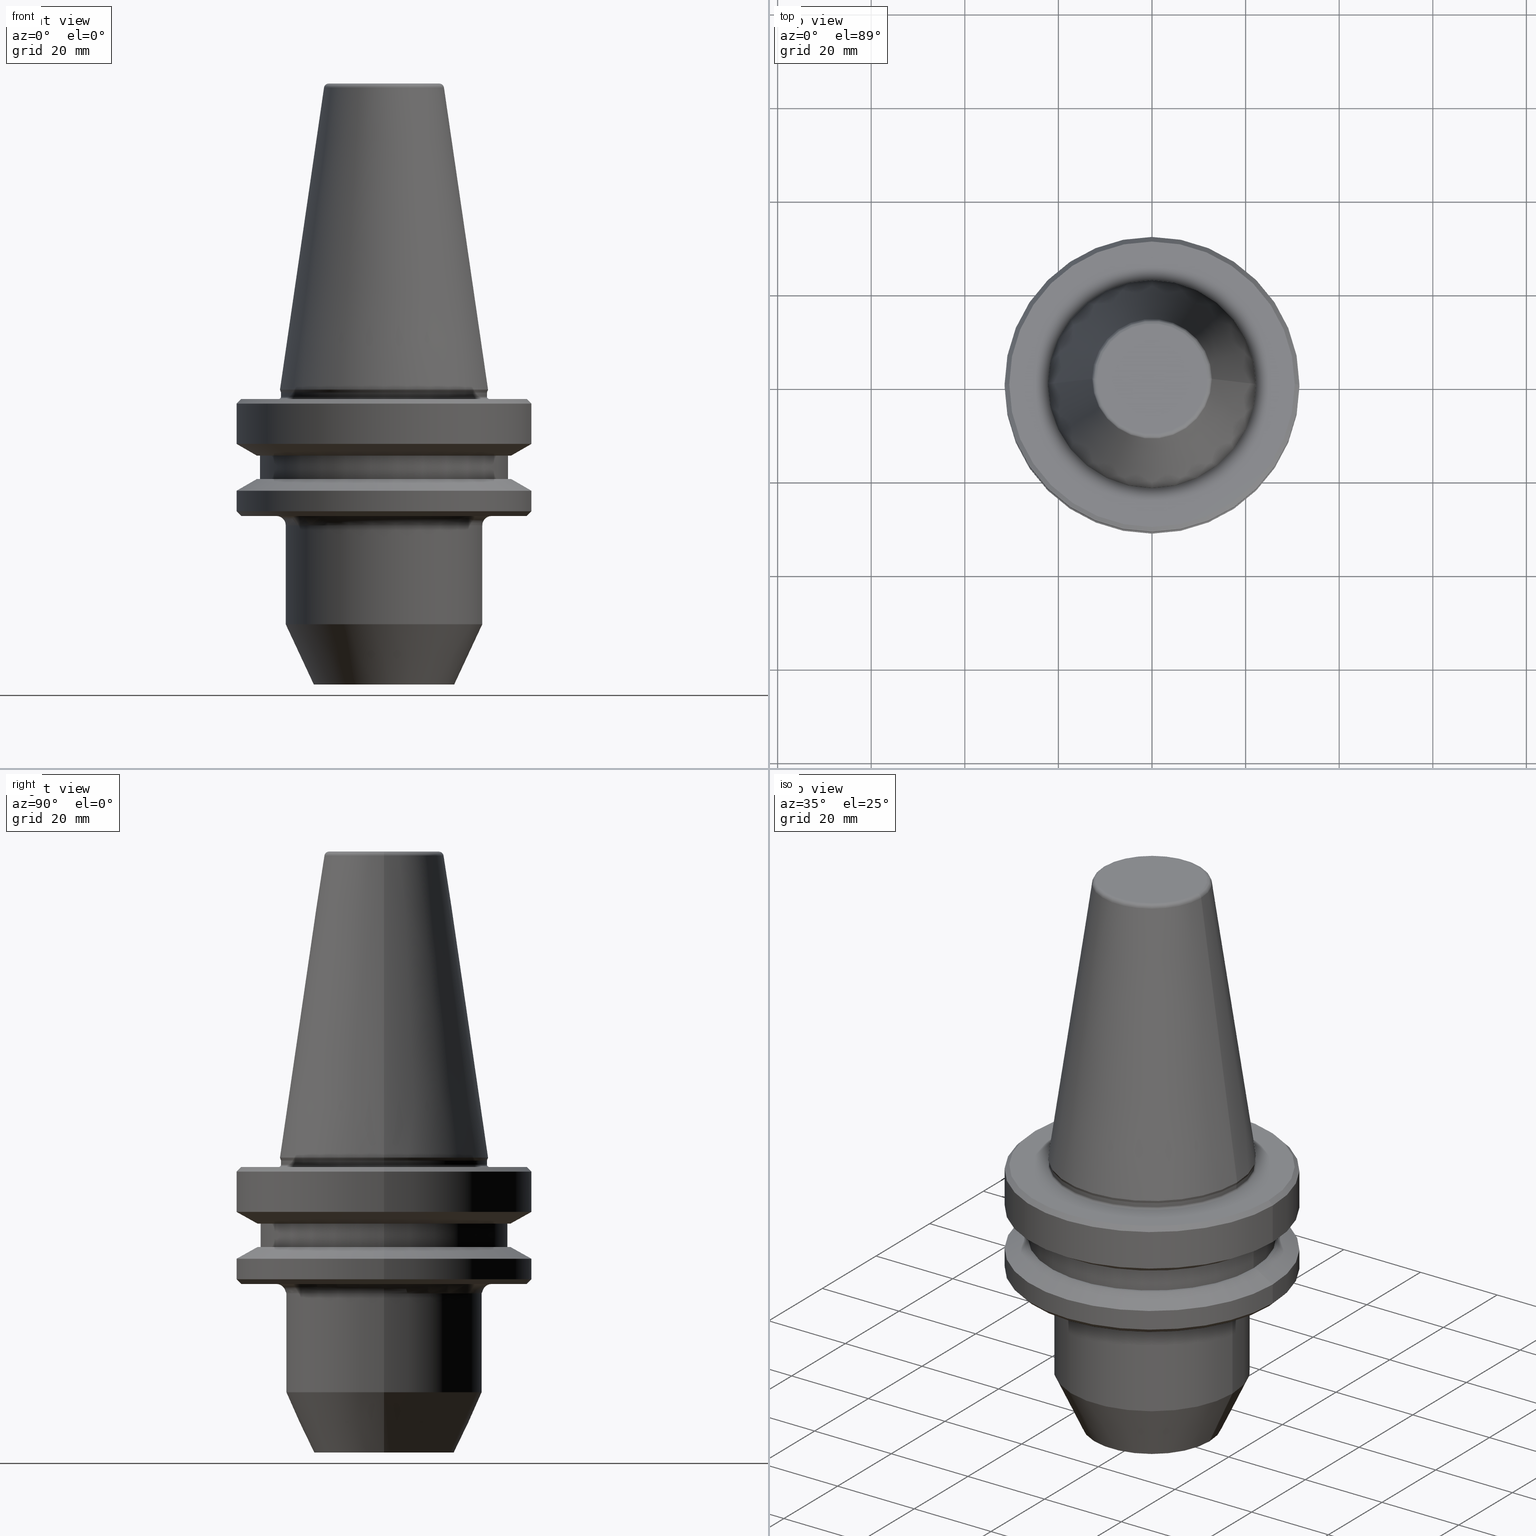
[diagram: canonical four-view strip — front | top / right | iso, engineering-drawing reading convention]
A machine part, canonical four-view strip (front | top / right | iso — engineering-drawing reading convention). The complete STEP part file that produces these views, byte-faithful:
ISO-10303-21;
HEADER;
FILE_DESCRIPTION (( 'STEP AP203' ),
    '1' );
FILE_NAME ('BT40 WE12 063 AD-6.3G15000 SL.STEP',
    '2019-05-22T08:18:51',
    ( '' ),
    ( '' ),
    'SwSTEP 2.0',
    'SolidWorks 2014',
    '' );
FILE_SCHEMA (( 'CONFIG_CONTROL_DESIGN' ));
ENDSEC;

DATA;
#1 = CARTESIAN_POINT ( 'NONE',  ( -14.99999999999845800, 2.204364238465033900E-015, -63.00000000012006800 ) ) ;
#2 = ORIENTED_EDGE ( 'NONE', *, *, #79, .T. ) ;
#3 = DIRECTION ( 'NONE',  ( 1.000000000000000000, 0.0000000000000000000, 0.0000000000000000000 ) ) ;
#4 = AXIS2_PLACEMENT_3D ( 'NONE', #421, #53, #819 ) ;
#5 = DIRECTION ( 'NONE',  ( -0.0000000000000000000, -0.0000000000000000000, 1.000000000000000000 ) ) ;
#6 = DIRECTION ( 'NONE',  ( 1.000000000000000000, 0.0000000000000000000, 0.0000000000000000000 ) ) ;
#7 = CARTESIAN_POINT ( 'NONE',  ( 0.0000000000000000000, 0.0000000000000000000, 0.0000000000000000000 ) ) ;
#8 = ADVANCED_FACE ( 'NONE', ( #950 ), #482, .T. ) ;
#9 = DIRECTION ( 'NONE',  ( 1.000000000000000000, 0.0000000000000000000, 0.0000000000000000000 ) ) ;
#10 = ORIENTED_EDGE ( 'NONE', *, *, #496, .F. ) ;
#11 = ORIENTED_EDGE ( 'NONE', *, *, #674, .T. ) ;
#12 = ORIENTED_EDGE ( 'NONE', *, *, #782, .T. ) ;
#13 = ORIENTED_EDGE ( 'NONE', *, *, #858, .T. ) ;
#14 = ORIENTED_EDGE ( 'NONE', *, *, #693, .F. ) ;
#15 = CARTESIAN_POINT ( 'NONE',  ( 12.81220206925735800, 0.0000000000000000000, 64.54430818888884900 ) ) ;
#16 = CIRCLE ( 'NONE', #963, 20.99999999999824100 ) ;
#17 = CARTESIAN_POINT ( 'NONE',  ( 14.99999999999845800, 0.0000000000000000000, -63.00000000012006800 ) ) ;
#18 = VECTOR ( 'NONE', #284, 1000.000000000000000 ) ;
#19 = DIRECTION ( 'NONE',  ( 0.0000000000000000000, 0.0000000000000000000, -1.000000000000000000 ) ) ;
#20 = ORIENTED_EDGE ( 'NONE', *, *, #666, .F. ) ;
#21 = DIRECTION ( 'NONE',  ( -0.0000000000000000000, -0.0000000000000000000, 1.000000000000000000 ) ) ;
#22 = DIRECTION ( 'NONE',  ( -0.0000000000000000000, -0.0000000000000000000, 1.000000000000000000 ) ) ;
#23 = DATE_AND_TIME ( #230, #453 ) ;
#24 = CARTESIAN_POINT ( 'NONE',  ( 0.0000000000000000000, 0.0000000000000000000, -0.6887132116596972300 ) ) ;
#25 = CARTESIAN_POINT ( 'NONE',  ( -27.16962701892300200, 3.592478546794661500E-015, -14.09999999999966700 ) ) ;
#26 = AXIS2_PLACEMENT_3D ( 'NONE', #143, #334, #139 ) ;
#27 = AXIS2_PLACEMENT_3D ( 'NONE', #567, #449, #665 ) ;
#28 = ADVANCED_FACE ( 'NONE', ( #355 ), #559, .T. ) ;
#29 = ORIENTED_EDGE ( 'NONE', *, *, #68, .T. ) ;
#30 = CIRCLE ( 'NONE', #408, 14.99999999999845800 ) ;
#31 = DIRECTION ( 'NONE',  ( 0.0000000000000000000, 0.0000000000000000000, -1.000000000000000000 ) ) ;
#32 = FACE_OUTER_BOUND ( 'NONE', #168, .T. ) ;
#33 = ORIENTED_EDGE ( 'NONE', *, *, #344, .F. ) ;
#34 = DIRECTION ( 'NONE',  ( -0.0000000000000000000, -0.0000000000000000000, 1.000000000000000000 ) ) ;
#35 = ORIENTED_EDGE ( 'NONE', *, *, #98, .T. ) ;
#36 = ORIENTED_EDGE ( 'NONE', *, *, #730, .T. ) ;
#37 = SECURITY_CLASSIFICATION_LEVEL ( 'unclassified' ) ;
#38 = DIRECTION ( 'NONE',  ( 1.000000000000000000, 0.0000000000000000000, 0.0000000000000000000 ) ) ;
#39 = VERTEX_POINT ( 'NONE', #76 ) ;
#40 = ORIENTED_EDGE ( 'NONE', *, *, #496, .T. ) ;
#41 = CIRCLE ( 'NONE', #286, 22.02412295168563700 ) ;
#42 = DIRECTION ( 'NONE',  ( -0.0000000000000000000, -0.0000000000000000000, 1.000000000000000000 ) ) ;
#43 = EDGE_LOOP ( 'NONE', ( #67, #831 ) ) ;
#44 = LINE ( 'NONE', #367, #18 ) ;
#45 = ADVANCED_FACE ( 'NONE', ( #748 ), #994, .F. ) ;
#46 = DIRECTION ( 'NONE',  ( 1.000000000000000000, 0.0000000000000000000, 0.0000000000000000000 ) ) ;
#47 = AXIS2_PLACEMENT_3D ( 'NONE', #500, #797, #122 ) ;
#48 = PLANE ( 'NONE',  #92 ) ;
#49 = APPROVAL_DATE_TIME ( #259, #918 ) ;
#50 = DIRECTION ( 'NONE',  ( 1.000000000000000000, 0.0000000000000000000, 0.0000000000000000000 ) ) ;
#51 = ORIENTED_EDGE ( 'NONE', *, *, #759, .T. ) ;
#52 = EDGE_LOOP ( 'NONE', ( #36, #623, #340, #383 ) ) ;
#53 = DIRECTION ( 'NONE',  ( -0.0000000000000000000, -0.0000000000000000000, 1.000000000000000000 ) ) ;
#54 = AXIS2_PLACEMENT_3D ( 'NONE', #179, #885, #507 ) ;
#55 = VECTOR ( 'NONE', #147, 1000.000000000000000 ) ;
#56 = LINE ( 'NONE', #193, #890 ) ;
#57 = DIRECTION ( 'NONE',  ( 0.0000000000000000000, 0.0000000000000000000, -1.000000000000000000 ) ) ;
#58 = CARTESIAN_POINT ( 'NONE',  ( 31.50000000000030600, 0.0000000000000000000, -21.60014200642035200 ) ) ;
#59 = DIRECTION ( 'NONE',  ( -0.0000000000000000000, -0.0000000000000000000, 1.000000000000000000 ) ) ;
#60 = AXIS2_PLACEMENT_3D ( 'NONE', #826, #476, #1025 ) ;
#61 = ADVANCED_FACE ( 'NONE', ( #267, #391 ), #310, .F. ) ;
#62 = APPLICATION_CONTEXT ( 'configuration controlled 3d designs of mechanical parts and assemblies' ) ;
#63 = ORIENTED_EDGE ( 'NONE', *, *, #847, .F. ) ;
#64 = AXIS2_PLACEMENT_3D ( 'NONE', #107, #1050, #869 ) ;
#65 = DIRECTION ( 'NONE',  ( 0.0000000000000000000, 0.0000000000000000000, -1.000000000000000000 ) ) ;
#66 = LINE ( 'NONE', #901, #685 ) ;
#67 = ORIENTED_EDGE ( 'NONE', *, *, #621, .T. ) ;
#68 = EDGE_CURVE ( 'NONE', #386, #299, #506, .T. ) ;
#69 = CONICAL_SURFACE ( 'NONE', #983, 22.02412295168563700, 0.3490658503994841800 ) ;
#70 = CARTESIAN_POINT ( 'NONE',  ( 0.0000000000000000000, 0.0000000000000000000, -1.499999999999779300 ) ) ;
#71 = CARTESIAN_POINT ( 'NONE',  ( 0.0000000000000000000, 0.0000000000000000000, -29.00000000010344400 ) ) ;
#72 = ORIENTED_EDGE ( 'NONE', *, *, #611, .T. ) ;
#73 = CARTESIAN_POINT ( 'NONE',  ( -22.22499999999993700, 0.0000000000000000000, 0.0000000000000000000 ) ) ;
#74 = CARTESIAN_POINT ( 'NONE',  ( 30.50000000000008200, 0.0000000000000000000, -27.00000000010344100 ) ) ;
#75 = APPROVAL_PERSON_ORGANIZATION ( #285, #918, #410 ) ;
#76 = CARTESIAN_POINT ( 'NONE',  ( 21.99999999999999300, 0.0000000000000000000, -1.499999999999779300 ) ) ;
#77 = ORIENTED_EDGE ( 'NONE', *, *, #194, .F. ) ;
#78 = DIRECTION ( 'NONE',  ( -0.0000000000000000000, -0.0000000000000000000, 1.000000000000000000 ) ) ;
#79 = EDGE_CURVE ( 'NONE', #429, #241, #313, .T. ) ;
#80 = VECTOR ( 'NONE', #717, 1000.000000000000100 ) ;
#81 = LINE ( 'NONE', #650, #508 ) ;
#82 = DIRECTION ( 'NONE',  ( 0.0000000000000000000, -0.0000000000000000000, 1.000000000000000000 ) ) ;
#83 = EDGE_LOOP ( 'NONE', ( #684, #13, #100, #834 ) ) ;
#84 = DIRECTION ( 'NONE',  ( 1.000000000000000000, 0.0000000000000000000, 0.0000000000000000000 ) ) ;
#85 = AXIS2_PLACEMENT_3D ( 'NONE', #319, #485, #452 ) ;
#86 = APPROVAL_ROLE ( '' ) ;
#87 = ORIENTED_EDGE ( 'NONE', *, *, #966, .T. ) ;
#88 = ORIENTED_EDGE ( 'NONE', *, *, #916, .T. ) ;
#89 = ADVANCED_FACE ( 'NONE', ( #726 ), #164, .T. ) ;
#90 = DIRECTION ( 'NONE',  ( 0.0000000000000000000, 0.0000000000000000000, 1.000000000000000000 ) ) ;
#91 = CIRCLE ( 'NONE', #155, 30.50000000000008200 ) ;
#92 = AXIS2_PLACEMENT_3D ( 'NONE', #605, #82, #440 ) ;
#93 = CYLINDRICAL_SURFACE ( 'NONE', #26, 31.50000000000030600 ) ;
#94 = ADVANCED_FACE ( 'NONE', ( #579 ), #228, .T. ) ;
#95 = APPROVAL_STATUS ( 'not_yet_approved' ) ;
#96 = EDGE_CURVE ( 'NONE', #541, #574, #399, .T. ) ;
#97 = DIRECTION ( 'NONE',  ( 1.000000000000000000, 0.0000000000000000000, 0.0000000000000000000 ) ) ;
#98 = EDGE_CURVE ( 'NONE', #699, #991, #855, .T. ) ;
#99 = ADVANCED_FACE ( 'NONE', ( #669 ), #728, .T. ) ;
#100 = ORIENTED_EDGE ( 'NONE', *, *, #744, .T. ) ;
#101 = AXIS2_PLACEMENT_3D ( 'NONE', #24, #282, #402 ) ;
#102 = CARTESIAN_POINT ( 'NONE',  ( -27.16962701892300200, 3.327319676275150100E-015, -14.09999999999966700 ) ) ;
#103 = FACE_BOUND ( 'NONE', #489, .T. ) ;
#104 = CARTESIAN_POINT ( 'NONE',  ( 0.0000000000000000000, 0.0000000000000000000, 108.5744106306333100 ) ) ;
#105 = EDGE_LOOP ( 'NONE', ( #989, #323 ) ) ;
#106 = CARTESIAN_POINT ( 'NONE',  ( 0.0000000000000000000, 0.0000000000000000000, 108.5744106306333100 ) ) ;
#107 = CARTESIAN_POINT ( 'NONE',  ( 0.0000000000000000000, 0.0000000000000000000, -2.999999999999780600 ) ) ;
#108 = ADVANCED_FACE ( 'NONE', ( #256 ), #706, .T. ) ;
#109 = CARTESIAN_POINT ( 'NONE',  ( 0.0000000000000000000, 0.0000000000000000000, -19.10000000010314400 ) ) ;
#110 = DIRECTION ( 'NONE',  ( -0.0000000000000000000, -0.0000000000000000000, 1.000000000000000000 ) ) ;
#111 = CC_DESIGN_PERSON_AND_ORGANIZATION_ASSIGNMENT ( #502, #512, ( #200 ) ) ;
#112 = VERTEX_POINT ( 'NONE', #625 ) ;
#113 = EDGE_CURVE ( 'NONE', #1010, #552, #943, .T. ) ;
#114 = ORIENTED_EDGE ( 'NONE', *, *, #898, .T. ) ;
#115 = CIRCLE ( 'NONE', #306, 12.81220206925737200 ) ;
#116 = TOROIDAL_SURFACE ( 'NONE', #315, 22.39999999999997700, 0.4000000000000609200 ) ;
#117 = CARTESIAN_POINT ( 'NONE',  ( 22.99999999999824500, 0.0000000000000000000, -27.00000000010344100 ) ) ;
#118 = EDGE_CURVE ( 'NONE', #654, #616, #81, .T. ) ;
#119 = DIRECTION ( 'NONE',  ( -0.0000000000000000000, -0.0000000000000000000, 1.000000000000000000 ) ) ;
#120 = DIRECTION ( 'NONE',  ( -0.0000000000000000000, -0.0000000000000000000, 1.000000000000000000 ) ) ;
#121 = ORIENTED_EDGE ( 'NONE', *, *, #799, .F. ) ;
#122 = DIRECTION ( 'NONE',  ( 1.000000000000000000, 0.0000000000000000000, 0.0000000000000000000 ) ) ;
#123 = MECHANICAL_CONTEXT ( 'NONE', #935, 'mechanical' ) ;
#124 = EDGE_CURVE ( 'NONE', #554, #805, #915, .T. ) ;
#125 = AXIS2_PLACEMENT_3D ( 'NONE', #445, #181, #697 ) ;
#126 = VERTEX_POINT ( 'NONE', #15 ) ;
#127 = DIRECTION ( 'NONE',  ( -1.000000000000000000, 0.0000000000000000000, -0.0000000000000000000 ) ) ;
#128 = EDGE_CURVE ( 'NONE', #574, #466, #56, .T. ) ;
#129 = VERTEX_POINT ( 'NONE', #364 ) ;
#130 = DIRECTION ( 'NONE',  ( -0.0000000000000000000, -0.0000000000000000000, 1.000000000000000000 ) ) ;
#131 = TOROIDAL_SURFACE ( 'NONE', #283, 22.99999999999824500, 2.000000000000001800 ) ;
#132 = ORIENTED_EDGE ( 'NONE', *, *, #407, .F. ) ;
#133 = ORIENTED_EDGE ( 'NONE', *, *, #611, .F. ) ;
#134 = CARTESIAN_POINT ( 'NONE',  ( 0.0000000000000000000, 0.0000000000000000000, -21.60014200642035200 ) ) ;
#135 = CALENDAR_DATE ( 2019, 22, 5 ) ;
#136 = ORIENTED_EDGE ( 'NONE', *, *, #237, .T. ) ;
#137 = VERTEX_POINT ( 'NONE', #683 ) ;
#138 = EDGE_LOOP ( 'NONE', ( #575, #820, #390, #653 ) ) ;
#139 = DIRECTION ( 'NONE',  ( 1.000000000000000000, 0.0000000000000000000, 0.0000000000000000000 ) ) ;
#140 = CYLINDRICAL_SURFACE ( 'NONE', #596, 26.50000000000030200 ) ;
#141 = ADVANCED_FACE ( 'NONE', ( #294 ), #239, .T. ) ;
#142 = VECTOR ( 'NONE', #287, 1000.000000000000000 ) ;
#143 = CARTESIAN_POINT ( 'NONE',  ( 0.0000000000000000000, 0.0000000000000000000, 108.5744106306333100 ) ) ;
#144 = ORIENTED_EDGE ( 'NONE', *, *, #852, .T. ) ;
#145 = EDGE_CURVE ( 'NONE', #39, #112, #459, .T. ) ;
#146 = DIRECTION ( 'NONE',  ( -0.0000000000000000000, -0.0000000000000000000, 1.000000000000000000 ) ) ;
#147 = DIRECTION ( 'NONE',  ( -0.0000000000000000000, -0.0000000000000000000, 1.000000000000000000 ) ) ;
#148 = ORIENTED_EDGE ( 'NONE', *, *, #545, .T. ) ;
#149 = EDGE_LOOP ( 'NONE', ( #121, #380, #758, #853 ) ) ;
#150 = CARTESIAN_POINT ( 'NONE',  ( 0.0000000000000000000, 26.50000000000030200, -14.09999999999966700 ) ) ;
#151 = AXIS2_PLACEMENT_3D ( 'NONE', #708, #902, #1000 ) ;
#152 = CIRCLE ( 'NONE', #461, 22.22499999999993700 ) ;
#153 = EDGE_CURVE ( 'NONE', #441, #603, #672, .T. ) ;
#154 = ORIENTED_EDGE ( 'NONE', *, *, #1006, .F. ) ;
#155 = AXIS2_PLACEMENT_3D ( 'NONE', #455, #119, #277 ) ;
#156 = DIRECTION ( 'NONE',  ( 1.224646799147353200E-016, 1.000000000000000000, 0.0000000000000000000 ) ) ;
#157 = EDGE_CURVE ( 'NONE', #719, #429, #266, .T. ) ;
#158 = DATE_AND_TIME ( #371, #585 ) ;
#159 = VERTEX_POINT ( 'NONE', #548 ) ;
#160 = DIRECTION ( 'NONE',  ( 1.000000000000000000, 0.0000000000000000000, 0.0000000000000000000 ) ) ;
#161 = ORIENTED_EDGE ( 'NONE', *, *, #248, .F. ) ;
#162 = ADVANCED_FACE ( 'NONE', ( #642, #483 ), #474, .F. ) ;
#163 = CARTESIAN_POINT ( 'NONE',  ( -26.50000000000030200, 3.245314017740522800E-015, 108.5744106306333100 ) ) ;
#164 = CONICAL_SURFACE ( 'NONE', #996, 31.50000000000030600, 1.047197551196601900 ) ;
#165 = CIRCLE ( 'NONE', #948, 14.99999999999845800 ) ;
#166 = DIRECTION ( 'NONE',  ( -1.000000000000000000, 1.224646799147355400E-016, 0.0000000000000000000 ) ) ;
#167 = FACE_OUTER_BOUND ( 'NONE', #43, .T. ) ;
#168 = EDGE_LOOP ( 'NONE', ( #644, #335, #209, #20 ) ) ;
#169 = AXIS2_PLACEMENT_3D ( 'NONE', #333, #843, #863 ) ;
#170 = ORIENTED_EDGE ( 'NONE', *, *, #551, .F. ) ;
#171 = DIRECTION ( 'NONE',  ( 1.000000000000000000, 0.0000000000000000000, 0.0000000000000000000 ) ) ;
#172 = CARTESIAN_POINT ( 'NONE',  ( -20.99999999999824100, 2.571758278209226700E-015, -29.00000000010344400 ) ) ;
#173 = CIRCLE ( 'NONE', #778, 26.50000000000030200 ) ;
#174 = DIRECTION ( 'NONE',  ( -0.7071067811865474600, 0.0000000000000000000, -0.7071067811865475700 ) ) ;
#175 = CARTESIAN_POINT ( 'NONE',  ( 0.0000000000000000000, 0.0000000000000000000, -21.60014200642035200 ) ) ;
#176 = AXIS2_PLACEMENT_3D ( 'NONE', #188, #783, #307 ) ;
#177 = CIRCLE ( 'NONE', #911, 22.99999999999824500 ) ;
#178 = DIRECTION ( 'NONE',  ( -0.0000000000000000000, -0.0000000000000000000, 1.000000000000000000 ) ) ;
#179 = CARTESIAN_POINT ( 'NONE',  ( 0.0000000000000000000, 0.0000000000000000000, -0.6887132116596972300 ) ) ;
#180 = DIRECTION ( 'NONE',  ( 1.000000000000000000, 0.0000000000000000000, 0.0000000000000000000 ) ) ;
#181 = DIRECTION ( 'NONE',  ( -0.0000000000000000000, -0.0000000000000000000, 1.000000000000000000 ) ) ;
#182 = CARTESIAN_POINT ( 'NONE',  ( 0.0000000000000000000, 0.0000000000000000000, -14.09999999999966700 ) ) ;
#183 = PERSON_AND_ORGANIZATION ( #909, #723 ) ;
#184 = CARTESIAN_POINT ( 'NONE',  ( 0.0000000000000000000, 0.0000000000000000000, -14.09999999999966700 ) ) ;
#185 = CC_DESIGN_SECURITY_CLASSIFICATION ( #1045, ( #884 ) ) ;
#186 = PRODUCT_DEFINITION_SHAPE ( 'NONE', 'NONE',  #922 ) ;
#187 = LINE ( 'NONE', #222, #373 ) ;
#188 = CARTESIAN_POINT ( 'NONE',  ( 0.0000000000000000000, 0.0000000000000000000, 0.0000000000000000000 ) ) ;
#189 = VECTOR ( 'NONE', #939, 999.9999999999998900 ) ;
#190 = CARTESIAN_POINT ( 'NONE',  ( 0.0000000000000000000, 0.0000000000000000000, -27.00000000010344100 ) ) ;
#191 = ORIENTED_EDGE ( 'NONE', *, *, #759, .F. ) ;
#192 = ADVANCED_FACE ( 'NONE', ( #32 ), #620, .T. ) ;
#193 = CARTESIAN_POINT ( 'NONE',  ( 27.16962701892300200, 0.0000000000000000000, -14.09999999999966700 ) ) ;
#194 = EDGE_CURVE ( 'NONE', #137, #289, #830, .T. ) ;
#195 =( NAMED_UNIT ( * ) SI_UNIT ( $, .STERADIAN. ) SOLID_ANGLE_UNIT ( ) );
#196 = DIRECTION ( 'NONE',  ( 1.000000000000000000, 0.0000000000000000000, 0.0000000000000000000 ) ) ;
#197 = DIRECTION ( 'NONE',  ( 1.000000000000000000, 0.0000000000000000000, 0.0000000000000000000 ) ) ;
#198 = DIRECTION ( 'NONE',  ( 1.000000000000000000, 0.0000000000000000000, 0.0000000000000000000 ) ) ;
#199 = CIRCLE ( 'NONE', #101, 21.99999999999990800 ) ;
#200 = PRODUCT ( 'BT40 WE12 063 AD-6.3G15000 SL', 'BT40 WE12 063 AD-6.3G15000 SL', '', ( #123 ) ) ;
#201 = EDGE_LOOP ( 'NONE', ( #497, #784, #698, #926 ) ) ;
#202 = DIRECTION ( 'NONE',  ( 1.000000000000000000, 0.0000000000000000000, 0.0000000000000000000 ) ) ;
#203 = DIRECTION ( 'NONE',  ( -0.0000000000000000000, -0.0000000000000000000, 1.000000000000000000 ) ) ;
#204 = LOCAL_TIME ( 13, 48, 51.00000000000000000, #423 ) ;
#205 = CC_DESIGN_APPROVAL ( #724, ( #1045 ) ) ;
#206 = DIRECTION ( 'NONE',  ( 0.7071067811865474600, 0.0000000000000000000, 0.7071067811865475700 ) ) ;
#207 = ORIENTED_EDGE ( 'NONE', *, *, #475, .T. ) ;
#208 = DIRECTION ( 'NONE',  ( -0.0000000000000000000, -0.0000000000000000000, 1.000000000000000000 ) ) ;
#209 = ORIENTED_EDGE ( 'NONE', *, *, #451, .F. ) ;
#210 = TOROIDAL_SURFACE ( 'NONE', #311, 11.82266927716813000, 1.000000000000029100 ) ;
#211 = ORIENTED_EDGE ( 'NONE', *, *, #118, .F. ) ;
#212 = CARTESIAN_POINT ( 'NONE',  ( 0.0000000000000000000, 0.0000000000000000000, 108.5744106306333100 ) ) ;
#213 = LINE ( 'NONE', #392, #403 ) ;
#214 = ORIENTED_EDGE ( 'NONE', *, *, #755, .F. ) ;
#215 = EDGE_LOOP ( 'NONE', ( #314, #397, #1023, #29 ) ) ;
#216 = ORIENTED_EDGE ( 'NONE', *, *, #128, .F. ) ;
#217 = DIRECTION ( 'NONE',  ( 0.0000000000000000000, 0.0000000000000000000, -1.000000000000000000 ) ) ;
#218 = EDGE_CURVE ( 'NONE', #630, #627, #213, .T. ) ;
#219 = AXIS2_PLACEMENT_3D ( 'NONE', #503, #5, #569 ) ;
#220 = DIRECTION ( 'NONE',  ( -0.0000000000000000000, -0.0000000000000000000, 1.000000000000000000 ) ) ;
#221 = EDGE_LOOP ( 'NONE', ( #770, #558, #12, #207 ) ) ;
#222 = CARTESIAN_POINT ( 'NONE',  ( 31.50000000000030600, 3.857637417314200600E-015, -21.60014200642035200 ) ) ;
#223 = EDGE_LOOP ( 'NONE', ( #583, #354, #377, #216 ) ) ;
#224 = FACE_OUTER_BOUND ( 'NONE', #295, .T. ) ;
#225 = ORIENTED_EDGE ( 'NONE', *, *, #248, .T. ) ;
#226 = FACE_OUTER_BOUND ( 'NONE', #700, .T. ) ;
#227 = CARTESIAN_POINT ( 'NONE',  ( 0.0000000000000000000, 0.0000000000000000000, 0.0000000000000000000 ) ) ;
#228 = CONICAL_SURFACE ( 'NONE', #702, 30.50000000000008200, 0.7853981633974482800 ) ;
#229 = AXIS2_PLACEMENT_3D ( 'NONE', #106, #751, #721 ) ;
#230 = CALENDAR_DATE ( 2019, 22, 5 ) ;
#231 = EDGE_LOOP ( 'NONE', ( #703, #589 ) ) ;
#232 = APPLICATION_PROTOCOL_DEFINITION ( 'international standard', 'config_control_design', 1994, #62 ) ;
#233 = ADVANCED_FACE ( 'NONE', ( #1053 ), #595, .T. ) ;
#234 = EDGE_CURVE ( 'NONE', #991, #1039, #807, .T. ) ;
#235 = EDGE_LOOP ( 'NONE', ( #324, #841, #484, #516 ) ) ;
#236 = ORIENTED_EDGE ( 'NONE', *, *, #679, .F. ) ;
#237 = EDGE_CURVE ( 'NONE', #654, #466, #432, .T. ) ;
#238 = CIRCLE ( 'NONE', #624, 0.4000000000000600300 ) ;
#239 = CYLINDRICAL_SURFACE ( 'NONE', #229, 26.50000000000030200 ) ;
#240 = AXIS2_PLACEMENT_3D ( 'NONE', #184, #425, #50 ) ;
#241 = VERTEX_POINT ( 'NONE', #365 ) ;
#242 = VERTEX_POINT ( 'NONE', #262 ) ;
#243 = DIRECTION ( 'NONE',  ( 0.0000000000000000000, 0.0000000000000000000, -1.000000000000000000 ) ) ;
#244 = DIRECTION ( 'NONE',  ( 1.000000000000000000, 0.0000000000000000000, 0.0000000000000000000 ) ) ;
#245 = ADVANCED_FACE ( 'NONE', ( #167 ), #829, .F. ) ;
#246 = DIRECTION ( 'NONE',  ( -1.000000000000000000, 0.0000000000000000000, 0.0000000000000000000 ) ) ;
#247 = ADVANCED_FACE ( 'NONE', ( #375, #788 ), #992, .F. ) ;
#248 = EDGE_CURVE ( 'NONE', #126, #648, #565, .T. ) ;
#249 = ORIENTED_EDGE ( 'NONE', *, *, #679, .T. ) ;
#250 = AXIS2_PLACEMENT_3D ( 'NONE', #961, #814, #942 ) ;
#251 = ORIENTED_EDGE ( 'NONE', *, *, #322, .T. ) ;
#252 = CIRCLE ( 'NONE', #274, 26.50000000000030200 ) ;
#253 = VECTOR ( 'NONE', #363, 999.9999999999998900 ) ;
#254 = DIRECTION ( 'NONE',  ( -0.0000000000000000000, -0.0000000000000000000, 1.000000000000000000 ) ) ;
#255 = AXIS2_PLACEMENT_3D ( 'NONE', #260, #346, #202 ) ;
#256 = FACE_OUTER_BOUND ( 'NONE', #223, .T. ) ;
#257 = CARTESIAN_POINT ( 'NONE',  ( 31.50000000000030600, 0.0000000000000000000, 108.5744106306333100 ) ) ;
#258 = CARTESIAN_POINT ( 'NONE',  ( 0.0000000000000000000, 11.82266927716824200, 65.40000000000051700 ) ) ;
#259 = DATE_AND_TIME ( #477, #695 ) ;
#260 = CARTESIAN_POINT ( 'NONE',  ( 0.0000000000000000000, 0.0000000000000000000, -2.999999999999780600 ) ) ;
#261 = ADVANCED_FACE ( 'NONE', ( #353 ), #48, .F. ) ;
#262 = CARTESIAN_POINT ( 'NONE',  ( -31.50000000000030600, 3.857637417314200600E-015, -21.60014200642035200 ) ) ;
#263 = LINE ( 'NONE', #954, #670 ) ;
#264 = CARTESIAN_POINT ( 'NONE',  ( 21.99999999999990800, 0.0000000000000000000, -0.6887132116596972300 ) ) ;
#265 = AXIS2_PLACEMENT_3D ( 'NONE', #70, #892, #271 ) ;
#266 = LINE ( 'NONE', #800, #866 ) ;
#267 = FACE_OUTER_BOUND ( 'NONE', #795, .T. ) ;
#268 = CARTESIAN_POINT ( 'NONE',  ( -27.16962701892167300, 0.0000000000000000000, -19.10000000010314400 ) ) ;
#269 = AXIS2_PLACEMENT_3D ( 'NONE', #576, #424, #906 ) ;
#270 = CARTESIAN_POINT ( 'NONE',  ( 0.0000000000000000000, 0.0000000000000000000, 64.40000000000067400 ) ) ;
#271 = DIRECTION ( 'NONE',  ( 1.000000000000000000, 0.0000000000000000000, 0.0000000000000000000 ) ) ;
#272 = CARTESIAN_POINT ( 'NONE',  ( 0.0000000000000000000, 0.0000000000000000000, -21.60014200642035200 ) ) ;
#273 = CARTESIAN_POINT ( 'NONE',  ( -21.99999999999999300, 2.724839128102864900E-015, -1.499999999999779300 ) ) ;
#274 = AXIS2_PLACEMENT_3D ( 'NONE', #109, #220, #38 ) ;
#275 = DIRECTION ( 'NONE',  ( 1.224646799147353200E-016, 1.000000000000000000, 0.0000000000000000000 ) ) ;
#276 = FACE_OUTER_BOUND ( 'NONE', #896, .T. ) ;
#277 = DIRECTION ( 'NONE',  ( 1.000000000000000000, 0.0000000000000000000, 0.0000000000000000000 ) ) ;
#278 = LINE ( 'NONE', #492, #446 ) ;
#279 = AXIS2_PLACEMENT_3D ( 'NONE', #663, #580, #281 ) ;
#280 = AXIS2_PLACEMENT_3D ( 'NONE', #777, #597, #689 ) ;
#281 = DIRECTION ( 'NONE',  ( 1.000000000000000000, 0.0000000000000000000, 0.0000000000000000000 ) ) ;
#282 = DIRECTION ( 'NONE',  ( -0.0000000000000000000, -0.0000000000000000000, 1.000000000000000000 ) ) ;
#283 = AXIS2_PLACEMENT_3D ( 'NONE', #71, #1011, #638 ) ;
#284 = DIRECTION ( 'NONE',  ( -0.0000000000000000000, -0.0000000000000000000, 1.000000000000000000 ) ) ;
#285 = PERSON_AND_ORGANIZATION ( #909, #723 ) ;
#286 = AXIS2_PLACEMENT_3D ( 'NONE', #821, #1044, #473 ) ;
#287 = DIRECTION ( 'NONE',  ( -0.0000000000000000000, -0.0000000000000000000, 1.000000000000000000 ) ) ;
#288 = CC_DESIGN_PERSON_AND_ORGANIZATION_ASSIGNMENT ( #394, #741, ( #884 ) ) ;
#289 = VERTEX_POINT ( 'NONE', #379 ) ;
#290 = PERSON_AND_ORGANIZATION_ROLE ( 'classification_officer' ) ;
#291 = DIRECTION ( 'NONE',  ( -0.0000000000000000000, -0.0000000000000000000, 1.000000000000000000 ) ) ;
#292 = LINE ( 'NONE', #102, #80 ) ;
#293 = CC_DESIGN_APPROVAL ( #347, ( #884 ) ) ;
#294 = FACE_OUTER_BOUND ( 'NONE', #201, .T. ) ;
#295 = EDGE_LOOP ( 'NONE', ( #746, #591, #1002, #518 ) ) ;
#296 = AXIS2_PLACEMENT_3D ( 'NONE', #227, #615, #957 ) ;
#297 = CARTESIAN_POINT ( 'NONE',  ( -31.50000000000008500, 0.0000000000000000000, -2.999999999999780600 ) ) ;
#298 = AXIS2_PLACEMENT_3D ( 'NONE', #897, #526, #981 ) ;
#299 = VERTEX_POINT ( 'NONE', #172 ) ;
#300 = CARTESIAN_POINT ( 'NONE',  ( 0.0000000000000000000, 0.0000000000000000000, 108.5744106306333100 ) ) ;
#301 = CIRCLE ( 'NONE', #265, 21.99999999999999300 ) ;
#302 = FACE_OUTER_BOUND ( 'NONE', #138, .T. ) ;
#303 = ORIENTED_EDGE ( 'NONE', *, *, #904, .T. ) ;
#304 = DIRECTION ( 'NONE',  ( -0.0000000000000000000, -0.0000000000000000000, 1.000000000000000000 ) ) ;
#305 = AXIS2_PLACEMENT_3D ( 'NONE', #718, #738, #851 ) ;
#306 = AXIS2_PLACEMENT_3D ( 'NONE', #1034, #304, #431 ) ;
#307 = DIRECTION ( 'NONE',  ( -1.000000000000000000, 0.0000000000000000000, 0.0000000000000000000 ) ) ;
#308 = DIRECTION ( 'NONE',  ( -0.0000000000000000000, -0.0000000000000000000, 1.000000000000000000 ) ) ;
#309 = AXIS2_PLACEMENT_3D ( 'NONE', #729, #572, #764 ) ;
#310 = PLANE ( 'NONE',  #802 ) ;
#311 = AXIS2_PLACEMENT_3D ( 'NONE', #586, #810, #677 ) ;
#312 = LINE ( 'NONE', #297, #865 ) ;
#313 = CIRCLE ( 'NONE', #279, 31.50000000000030600 ) ;
#314 = ORIENTED_EDGE ( 'NONE', *, *, #812, .F. ) ;
#315 = AXIS2_PLACEMENT_3D ( 'NONE', #501, #208, #197 ) ;
#316 = ORIENTED_EDGE ( 'NONE', *, *, #812, .T. ) ;
#317 = EDGE_CURVE ( 'NONE', #159, #701, #980, .T. ) ;
#318 = VECTOR ( 'NONE', #539, 1000.000000000000000 ) ;
#319 = CARTESIAN_POINT ( 'NONE',  ( 0.0000000000000000000, 0.0000000000000000000, 64.54430818888884900 ) ) ;
#320 = ADVANCED_FACE ( 'NONE', ( #1032 ), #735, .T. ) ;
#321 = DIRECTION ( 'NONE',  ( -0.0000000000000000000, -0.0000000000000000000, 1.000000000000000000 ) ) ;
#322 = EDGE_CURVE ( 'NONE', #39, #699, #953, .T. ) ;
#323 = ORIENTED_EDGE ( 'NONE', *, *, #96, .F. ) ;
#324 = ORIENTED_EDGE ( 'NONE', *, *, #344, .T. ) ;
#325 = DIRECTION ( 'NONE',  ( 0.7071067811865474600, 8.659560562354931600E-017, -0.7071067811865475700 ) ) ;
#326 = CYLINDRICAL_SURFACE ( 'NONE', #1014, 31.50000000000030600 ) ;
#327 = CIRCLE ( 'NONE', #47, 26.50000000000030200 ) ;
#328 = APPROVAL_STATUS ( 'not_yet_approved' ) ;
#329 = CARTESIAN_POINT ( 'NONE',  ( 0.0000000000000000000, 26.50000000000030200, -19.10000000010314400 ) ) ;
#330 = CARTESIAN_POINT ( 'NONE',  ( 22.22499999999993700, 0.0000000000000000000, 0.0000000000000000000 ) ) ;
#331 = AXIS2_PLACEMENT_3D ( 'NONE', #272, #19, #532 ) ;
#332 = ADVANCED_FACE ( 'NONE', ( #1008 ), #116, .F. ) ;
#333 = CARTESIAN_POINT ( 'NONE',  ( -22.50000000000007500, 2.755455298081553800E-015, -1.499999999999779300 ) ) ;
#334 = DIRECTION ( 'NONE',  ( -0.0000000000000000000, -0.0000000000000000000, 1.000000000000000000 ) ) ;
#335 = ORIENTED_EDGE ( 'NONE', *, *, #118, .T. ) ;
#336 = DATE_TIME_ROLE ( 'creation_date' ) ;
#337 = ADVANCED_FACE ( 'NONE', ( #546 ), #93, .T. ) ;
#338 = CONICAL_SURFACE ( 'NONE', #659, 30.50000000000008200, 0.7853981633974482800 ) ;
#339 = CARTESIAN_POINT ( 'NONE',  ( 22.22499999999993700, 2.721777511104985000E-015, 0.0000000000000000000 ) ) ;
#340 = ORIENTED_EDGE ( 'NONE', *, *, #993, .F. ) ;
#341 = VERTEX_POINT ( 'NONE', #780 ) ;
#342 = CC_DESIGN_DATE_AND_TIME_ASSIGNMENT ( #23, #336, ( #922 ) ) ;
#343 = DIRECTION ( 'NONE',  ( -0.0000000000000000000, -0.0000000000000000000, 1.000000000000000000 ) ) ;
#344 = EDGE_CURVE ( 'NONE', #129, #159, #327, .T. ) ;
#345 = LOCAL_TIME ( 13, 48, 51.00000000000000000, #561 ) ;
#346 = DIRECTION ( 'NONE',  ( -0.0000000000000000000, -0.0000000000000000000, 1.000000000000000000 ) ) ;
#347 = APPROVAL ( #563, 'UNSPECIFIED' ) ;
#348 = ADVANCED_FACE ( 'NONE', ( #302 ), #69, .T. ) ;
#349 = ORIENTED_EDGE ( 'NONE', *, *, #773, .T. ) ;
#350 = DIRECTION ( 'NONE',  ( -0.0000000000000000000, -0.0000000000000000000, 1.000000000000000000 ) ) ;
#351 = CIRCLE ( 'NONE', #895, 0.4000000000000609200 ) ;
#352 = CARTESIAN_POINT ( 'NONE',  ( -31.50000000000030600, 0.0000000000000000000, -21.60014200642035200 ) ) ;
#353 = FACE_OUTER_BOUND ( 'NONE', #639, .T. ) ;
#354 = ORIENTED_EDGE ( 'NONE', *, *, #649, .T. ) ;
#355 = FACE_OUTER_BOUND ( 'NONE', #872, .T. ) ;
#356 = DIRECTION ( 'NONE',  ( 0.0000000000000000000, 0.0000000000000000000, -1.000000000000000000 ) ) ;
#357 = DIRECTION ( 'NONE',  ( 1.000000000000000000, 0.0000000000000000000, 0.0000000000000000000 ) ) ;
#358 = EDGE_CURVE ( 'NONE', #637, #488, #493, .T. ) ;
#359 = CARTESIAN_POINT ( 'NONE',  ( -22.99999999999824500, 2.816687638038697400E-015, -27.00000000010344100 ) ) ;
#360 = AXIS2_PLACEMENT_3D ( 'NONE', #710, #443, #547 ) ;
#361 = DIRECTION ( 'NONE',  ( -1.000000000000000000, 1.224646799147353900E-016, 0.0000000000000000000 ) ) ;
#362 = VECTOR ( 'NONE', #519, 1000.000000000000100 ) ;
#363 = DIRECTION ( 'NONE',  ( -0.1443081888881784800, 0.0000000000000000000, -0.9895327920891828800 ) ) ;
#364 = CARTESIAN_POINT ( 'NONE',  ( 26.50000000000030200, 0.0000000000000000000, -19.10000000010314400 ) ) ;
#365 = CARTESIAN_POINT ( 'NONE',  ( 31.50000000000030600, 0.0000000000000000000, -26.00000000010321700 ) ) ;
#366 = TOROIDAL_SURFACE ( 'NONE', #388, 22.39999999999997700, 0.4000000000000609200 ) ;
#367 = CARTESIAN_POINT ( 'NONE',  ( -20.99999999999824100, 2.571758278209226700E-015, 108.5744106306333100 ) ) ;
#368 = CARTESIAN_POINT ( 'NONE',  ( 0.0000000000000000000, 0.0000000000000000000, -27.00000000010344100 ) ) ;
#369 = CARTESIAN_POINT ( 'NONE',  ( 0.0000000000000000000, 0.0000000000000000000, -50.13295847706306300 ) ) ;
#370 = DIRECTION ( 'NONE',  ( 1.000000000000000000, 0.0000000000000000000, 0.0000000000000000000 ) ) ;
#371 = CALENDAR_DATE ( 2019, 22, 5 ) ;
#372 = EDGE_LOOP ( 'NONE', ( #790, #938 ) ) ;
#373 = VECTOR ( 'NONE', #944, 1000.000000000000100 ) ;
#374 = EDGE_CURVE ( 'NONE', #646, #112, #757, .T. ) ;
#375 = FACE_BOUND ( 'NONE', #951, .T. ) ;
#376 = CARTESIAN_POINT ( 'NONE',  ( -31.50000000000008500, 3.857637417314172900E-015, -2.999999999999780600 ) ) ;
#377 = ORIENTED_EDGE ( 'NONE', *, *, #972, .F. ) ;
#378 = DIRECTION ( 'NONE',  ( 1.000000000000000000, 0.0000000000000000000, 0.0000000000000000000 ) ) ;
#379 = CARTESIAN_POINT ( 'NONE',  ( 11.82266927716824200, 0.0000000000000000000, 65.40000000000067400 ) ) ;
#380 = ORIENTED_EDGE ( 'NONE', *, *, #322, .F. ) ;
#381 = ORIENTED_EDGE ( 'NONE', *, *, #858, .F. ) ;
#382 = CARTESIAN_POINT ( 'NONE',  ( -22.39999999999997700, 2.743208830090067900E-015, -0.6887132116596972300 ) ) ;
#383 = ORIENTED_EDGE ( 'NONE', *, *, #358, .F. ) ;
#384 = ADVANCED_FACE ( 'NONE', ( #522 ), #470, .T. ) ;
#385 = DIRECTION ( 'NONE',  ( -0.0000000000000000000, -0.0000000000000000000, 1.000000000000000000 ) ) ;
#386 = VERTEX_POINT ( 'NONE', #774 ) ;
#387 = LINE ( 'NONE', #257, #606 ) ;
#388 = AXIS2_PLACEMENT_3D ( 'NONE', #464, #21, #1022 ) ;
#389 = DIRECTION ( 'NONE',  ( 1.000000000000000000, 0.0000000000000000000, 0.0000000000000000000 ) ) ;
#390 = ORIENTED_EDGE ( 'NONE', *, *, #934, .F. ) ;
#391 = FACE_BOUND ( 'NONE', #372, .T. ) ;
#392 = CARTESIAN_POINT ( 'NONE',  ( -14.99999999999845800, 1.836970198720841100E-015, -63.00000000012006800 ) ) ;
#393 = EDGE_CURVE ( 'NONE', #682, #844, #900, .T. ) ;
#394 = PERSON_AND_ORGANIZATION ( #909, #723 ) ;
#395 = EDGE_CURVE ( 'NONE', #1018, #242, #688, .T. ) ;
#396 = ORIENTED_EDGE ( 'NONE', *, *, #745, .F. ) ;
#397 = ORIENTED_EDGE ( 'NONE', *, *, #498, .F. ) ;
#398 = ORIENTED_EDGE ( 'NONE', *, *, #727, .F. ) ;
#399 = CIRCLE ( 'NONE', #240, 27.16962701892300200 ) ;
#400 = AXIS2_PLACEMENT_3D ( 'NONE', #258, #243, #127 ) ;
#401 = FACE_OUTER_BOUND ( 'NONE', #786, .T. ) ;
#402 = DIRECTION ( 'NONE',  ( 1.000000000000000000, 0.0000000000000000000, 0.0000000000000000000 ) ) ;
#403 = VECTOR ( 'NONE', #447, 1000.000000000000200 ) ;
#404 = ORIENTED_EDGE ( 'NONE', *, *, #861, .T. ) ;
#405 = ORIENTED_EDGE ( 'NONE', *, *, #157, .T. ) ;
#406 = EDGE_LOOP ( 'NONE', ( #303, #405, #932, #557 ) ) ;
#407 = EDGE_CURVE ( 'NONE', #39, #1039, #931, .T. ) ;
#408 = AXIS2_PLACEMENT_3D ( 'NONE', #647, #22, #370 ) ;
#409 = CARTESIAN_POINT ( 'NONE',  ( 0.0000000000000000000, 0.0000000000000000000, 108.5744106306333100 ) ) ;
#410 = APPROVAL_ROLE ( '' ) ;
#411 = ORIENTED_EDGE ( 'NONE', *, *, #956, .F. ) ;
#412 = DIRECTION ( 'NONE',  ( -1.000000000000000000, 0.0000000000000000000, -0.0000000000000000000 ) ) ;
#413 = CARTESIAN_POINT ( 'NONE',  ( 11.82266927716813000, 0.0000000000000000000, 64.40000000000067400 ) ) ;
#414 = CONICAL_SURFACE ( 'NONE', #176, 22.22499999999993700, 0.1448138077623186700 ) ;
#415 = CIRCLE ( 'NONE', #837, 26.50000000000030200 ) ;
#416 = CARTESIAN_POINT ( 'NONE',  ( -21.99999999999990800, 2.694222958124168500E-015, -0.6887132116596972300 ) ) ;
#417 = DIRECTION ( 'NONE',  ( -0.0000000000000000000, -0.0000000000000000000, 1.000000000000000000 ) ) ;
#418 = AXIS2_PLACEMENT_3D ( 'NONE', #893, #42, #196 ) ;
#419 = CARTESIAN_POINT ( 'NONE',  ( 0.0000000000000000000, 0.0000000000000000000, -1.999999999999779700 ) ) ;
#420 = ORIENTED_EDGE ( 'NONE', *, *, #867, .T. ) ;
#421 = CARTESIAN_POINT ( 'NONE',  ( 0.0000000000000000000, 0.0000000000000000000, 65.40000000000067400 ) ) ;
#422 = CARTESIAN_POINT ( 'NONE',  ( 0.0000000000000000000, 0.0000000000000000000, -21.60014200642035200 ) ) ;
#423 = COORDINATED_UNIVERSAL_TIME_OFFSET ( 5, 30, .AHEAD. ) ;
#424 = DIRECTION ( 'NONE',  ( 0.0000000000000000000, 0.0000000000000000000, -1.000000000000000000 ) ) ;
#425 = DIRECTION ( 'NONE',  ( -0.0000000000000000000, -0.0000000000000000000, 1.000000000000000000 ) ) ;
#426 = EDGE_CURVE ( 'NONE', #603, #844, #278, .T. ) ;
#427 = CARTESIAN_POINT ( 'NONE',  ( 0.0000000000000000000, 0.0000000000000000000, -14.09999999999966700 ) ) ;
#428 = EDGE_CURVE ( 'NONE', #627, #299, #44, .T. ) ;
#429 = VERTEX_POINT ( 'NONE', #768 ) ;
#430 = CONICAL_SURFACE ( 'NONE', #524, 14.99999999999845800, 0.4363323129985787200 ) ;
#431 = DIRECTION ( 'NONE',  ( 1.000000000000000000, 0.0000000000000000000, 0.0000000000000000000 ) ) ;
#432 = CIRCLE ( 'NONE', #581, 31.50000000000008500 ) ;
#433 = ORIENTED_EDGE ( 'NONE', *, *, #374, .F. ) ;
#434 = ORIENTED_EDGE ( 'NONE', *, *, #234, .F. ) ;
#435 = AXIS2_PLACEMENT_3D ( 'NONE', #763, #988, #1029 ) ;
#436 = DIRECTION ( 'NONE',  ( -0.0000000000000000000, -0.0000000000000000000, 1.000000000000000000 ) ) ;
#437 = DIRECTION ( 'NONE',  ( 1.000000000000000000, 0.0000000000000000000, 0.0000000000000000000 ) ) ;
#438 = DIRECTION ( 'NONE',  ( 0.0000000000000000000, -0.0000000000000000000, 1.000000000000000000 ) ) ;
#439 = EDGE_LOOP ( 'NONE', ( #510, #1030, #249, #531 ) ) ;
#440 = DIRECTION ( 'NONE',  ( 1.000000000000000000, 0.0000000000000000000, 0.0000000000000000000 ) ) ;
#441 = VERTEX_POINT ( 'NONE', #864 ) ;
#442 = CIRCLE ( 'NONE', #60, 31.50000000000008500 ) ;
#443 = DIRECTION ( 'NONE',  ( -0.0000000000000000000, -0.0000000000000000000, 1.000000000000000000 ) ) ;
#444 = ADVANCED_FACE ( 'NONE', ( #226 ), #817, .T. ) ;
#445 = CARTESIAN_POINT ( 'NONE',  ( 0.0000000000000000000, 0.0000000000000000000, -29.00000000010344400 ) ) ;
#446 = VECTOR ( 'NONE', #871, 1000.000000000000000 ) ;
#447 = DIRECTION ( 'NONE',  ( -0.4226182617406961100, 5.175581015019618700E-017, 0.9063077870366514900 ) ) ;
#448 = ADVANCED_BREP_SHAPE_REPRESENTATION ( 'BT40 WE12 063 AD-6.3G15000 SL', ( #923, #835 ), #1001 ) ;
#449 = DIRECTION ( 'NONE',  ( -0.0000000000000000000, -0.0000000000000000000, 1.000000000000000000 ) ) ;
#450 = ORIENTED_EDGE ( 'NONE', *, *, #730, .F. ) ;
#451 = EDGE_CURVE ( 'NONE', #341, #616, #1041, .T. ) ;
#452 = DIRECTION ( 'NONE',  ( 1.000000000000000000, 0.0000000000000000000, 0.0000000000000000000 ) ) ;
#453 = LOCAL_TIME ( 13, 48, 51.00000000000000000, #664 ) ;
#454 = AXIS2_PLACEMENT_3D ( 'NONE', #175, #652, #437 ) ;
#455 = CARTESIAN_POINT ( 'NONE',  ( 0.0000000000000000000, 0.0000000000000000000, -1.999999999999779700 ) ) ;
#456 = AXIS2_PLACEMENT_3D ( 'NONE', #614, #686, #845 ) ;
#457 = FACE_OUTER_BOUND ( 'NONE', #52, .T. ) ;
#458 = CARTESIAN_POINT ( 'NONE',  ( 26.50000000000030200, 0.0000000000000000000, -14.09999999999966700 ) ) ;
#459 = CIRCLE ( 'NONE', #571, 0.5000000000000837100 ) ;
#460 = CARTESIAN_POINT ( 'NONE',  ( -22.02412295168563700, 2.697177167680957100E-015, -0.5519051543291797500 ) ) ;
#461 = AXIS2_PLACEMENT_3D ( 'NONE', #7, #977, #903 ) ;
#462 = EDGE_LOOP ( 'NONE', ( #1038, #1051, #661, #154 ) ) ;
#463 = CARTESIAN_POINT ( 'NONE',  ( 27.16962701892300200, 0.0000000000000000000, -14.09999999999966700 ) ) ;
#464 = CARTESIAN_POINT ( 'NONE',  ( 0.0000000000000000000, 0.0000000000000000000, -0.6887132116596972300 ) ) ;
#465 = DIRECTION ( 'NONE',  ( -0.0000000000000000000, -0.0000000000000000000, 1.000000000000000000 ) ) ;
#466 = VERTEX_POINT ( 'NONE', #868 ) ;
#467 = DIRECTION ( 'NONE',  ( -0.0000000000000000000, -0.0000000000000000000, 1.000000000000000000 ) ) ;
#468 = DIRECTION ( 'NONE',  ( 0.0000000000000000000, -1.000000000000000000, 0.0000000000000000000 ) ) ;
#469 = CIRCLE ( 'NONE', #280, 2.000000000000001800 ) ;
#470 = CYLINDRICAL_SURFACE ( 'NONE', #828, 20.99999999999824100 ) ;
#471 = CARTESIAN_POINT ( 'NONE',  ( 0.0000000000000000000, 0.0000000000000000000, -14.09999999999966700 ) ) ;
#472 = AXIS2_PLACEMENT_3D ( 'NONE', #190, #962, #378 ) ;
#473 = DIRECTION ( 'NONE',  ( 1.000000000000000000, 0.0000000000000000000, 0.0000000000000000000 ) ) ;
#474 = PLANE ( 'NONE',  #269 ) ;
#475 = EDGE_CURVE ( 'NONE', #1039, #991, #199, .T. ) ;
#476 = DIRECTION ( 'NONE',  ( -0.0000000000000000000, -0.0000000000000000000, 1.000000000000000000 ) ) ;
#477 = CALENDAR_DATE ( 2019, 22, 5 ) ;
#478 = DIRECTION ( 'NONE',  ( -0.0000000000000000000, -0.0000000000000000000, 1.000000000000000000 ) ) ;
#479 = ORIENTED_EDGE ( 'NONE', *, *, #907, .F. ) ;
#480 = VERTEX_POINT ( 'NONE', #74 ) ;
#481 = VECTOR ( 'NONE', #34, 1000.000000000000000 ) ;
#482 = CYLINDRICAL_SURFACE ( 'NONE', #511, 21.99999999999995000 ) ;
#483 = FACE_OUTER_BOUND ( 'NONE', #231, .T. ) ;
#484 = ORIENTED_EDGE ( 'NONE', *, *, #545, .F. ) ;
#485 = DIRECTION ( 'NONE',  ( -0.0000000000000000000, -0.0000000000000000000, 1.000000000000000000 ) ) ;
#486 = ADVANCED_FACE ( 'NONE', ( #849 ), #1019, .T. ) ;
#487 = CARTESIAN_POINT ( 'NONE',  ( 0.0000000000000000000, 0.0000000000000000000, -26.00000000010321700 ) ) ;
#488 = VERTEX_POINT ( 'NONE', #1035 ) ;
#489 = EDGE_LOOP ( 'NONE', ( #148, #495 ) ) ;
#490 = CARTESIAN_POINT ( 'NONE',  ( 31.50000000000008500, 3.857637417314172900E-015, -2.999999999999780600 ) ) ;
#491 = TOROIDAL_SURFACE ( 'NONE', #913, 22.50000000000007500, 0.5000000000000837100 ) ;
#492 = CARTESIAN_POINT ( 'NONE',  ( -22.02412295168563700, 2.697177167680957100E-015, -0.5519051543291797500 ) ) ;
#493 = LINE ( 'NONE', #17, #715 ) ;
#494 = DIRECTION ( 'NONE',  ( 1.000000000000000000, 0.0000000000000000000, 0.0000000000000000000 ) ) ;
#495 = ORIENTED_EDGE ( 'NONE', *, *, #1017, .T. ) ;
#496 = EDGE_CURVE ( 'NONE', #241, #1018, #387, .T. ) ;
#497 = ORIENTED_EDGE ( 'NONE', *, *, #317, .F. ) ;
#498 = EDGE_CURVE ( 'NONE', #805, #554, #177, .T. ) ;
#499 = DIRECTION ( 'NONE',  ( -0.0000000000000000000, -0.0000000000000000000, 1.000000000000000000 ) ) ;
#500 = CARTESIAN_POINT ( 'NONE',  ( 0.0000000000000000000, 0.0000000000000000000, -19.10000000010314400 ) ) ;
#501 = CARTESIAN_POINT ( 'NONE',  ( 0.0000000000000000000, 0.0000000000000000000, -0.6887132116596972300 ) ) ;
#502 = PERSON_AND_ORGANIZATION ( #909, #723 ) ;
#503 = CARTESIAN_POINT ( 'NONE',  ( 0.0000000000000000000, 0.0000000000000000000, -1.499999999999779300 ) ) ;
#504 = CARTESIAN_POINT ( 'NONE',  ( -30.50000000000008200, 3.796405077356818800E-015, -27.00000000010344100 ) ) ;
#505 = CIRCLE ( 'NONE', #823, 20.99999999999824100 ) ;
#506 = CIRCLE ( 'NONE', #27, 20.99999999999824100 ) ;
#507 = DIRECTION ( 'NONE',  ( 1.000000000000000000, 0.0000000000000000000, 0.0000000000000000000 ) ) ;
#508 = VECTOR ( 'NONE', #635, 1000.000000000000000 ) ;
#509 = EDGE_CURVE ( 'NONE', #574, #541, #633, .T. ) ;
#510 = ORIENTED_EDGE ( 'NONE', *, *, #428, .F. ) ;
#511 = AXIS2_PLACEMENT_3D ( 'NONE', #212, #785, #389 ) ;
#512 = PERSON_AND_ORGANIZATION_ROLE ( 'design_owner' ) ;
#513 = AXIS2_PLACEMENT_3D ( 'NONE', #969, #254, #1012 ) ;
#514 = ADVANCED_FACE ( 'NONE', ( #657 ), #772, .T. ) ;
#515 = CARTESIAN_POINT ( 'NONE',  ( 0.0000000000000000000, 0.0000000000000000000, -63.00000000012006800 ) ) ;
#516 = ORIENTED_EDGE ( 'NONE', *, *, #825, .F. ) ;
#517 = ADVANCED_FACE ( 'NONE', ( #578 ), #338, .T. ) ;
#518 = ORIENTED_EDGE ( 'NONE', *, *, #237, .F. ) ;
#519 = DIRECTION ( 'NONE',  ( -0.8660254037844407100, 0.0000000000000000000, -0.4999999999999963900 ) ) ;
#520 = LINE ( 'NONE', #490, #929 ) ;
#521 = AXIS2_PLACEMENT_3D ( 'NONE', #527, #275, #361 ) ;
#522 = FACE_OUTER_BOUND ( 'NONE', #566, .T. ) ;
#523 = DIRECTION ( 'NONE',  ( 1.000000000000000000, 0.0000000000000000000, 0.0000000000000000000 ) ) ;
#524 = AXIS2_PLACEMENT_3D ( 'NONE', #747, #920, #523 ) ;
#525 = DIRECTION ( 'NONE',  ( 1.000000000000000000, 0.0000000000000000000, 0.0000000000000000000 ) ) ;
#526 = DIRECTION ( 'NONE',  ( -0.0000000000000000000, -0.0000000000000000000, 1.000000000000000000 ) ) ;
#527 = CARTESIAN_POINT ( 'NONE',  ( -11.82266927716813000, 1.447859408766170200E-015, 64.40000000000067400 ) ) ;
#528 = CLOSED_SHELL ( 'NONE', ( #320, #348, #550, #99, #888, #514, #192, #108, #762, #89, #791, #94, #577, #384, #691, #737, #732, #245, #261, #28, #660, #995, #61, #517, #337, #486, #247, #141, #628, #973, #233, #444, #162, #45, #8, #332, #1005, #945 ) ) ;
#529 = DIRECTION ( 'NONE',  ( -0.0000000000000000000, -0.0000000000000000000, 1.000000000000000000 ) ) ;
#530 = ORIENTED_EDGE ( 'NONE', *, *, #852, .F. ) ;
#531 = ORIENTED_EDGE ( 'NONE', *, *, #662, .F. ) ;
#532 = DIRECTION ( 'NONE',  ( -1.000000000000000000, 0.0000000000000000000, 0.0000000000000000000 ) ) ;
#533 = CIRCLE ( 'NONE', #4, 11.82266927716824200 ) ;
#534 = DIRECTION ( 'NONE',  ( 1.000000000000000000, 0.0000000000000000000, 0.0000000000000000000 ) ) ;
#535 = DIRECTION ( 'NONE',  ( -1.000000000000000000, 0.0000000000000000000, 0.0000000000000000000 ) ) ;
#536 = DATE_TIME_ROLE ( 'classification_date' ) ;
#537 = EDGE_LOOP ( 'NONE', ( #811, #640, #804, #975 ) ) ;
#538 = AXIS2_PLACEMENT_3D ( 'NONE', #422, #343, #180 ) ;
#539 = DIRECTION ( 'NONE',  ( -0.0000000000000000000, -0.0000000000000000000, 1.000000000000000000 ) ) ;
#540 = ORIENTED_EDGE ( 'NONE', *, *, #560, .F. ) ;
#541 = VERTEX_POINT ( 'NONE', #25 ) ;
#542 = ORIENTED_EDGE ( 'NONE', *, *, #475, .F. ) ;
#543 = ORIENTED_EDGE ( 'NONE', *, *, #966, .F. ) ;
#544 = CIRCLE ( 'NONE', #169, 0.5000000000000837100 ) ;
#545 = EDGE_CURVE ( 'NONE', #767, #701, #415, .T. ) ;
#546 = FACE_OUTER_BOUND ( 'NONE', #555, .T. ) ;
#547 = DIRECTION ( 'NONE',  ( 1.000000000000000000, 0.0000000000000000000, 0.0000000000000000000 ) ) ;
#548 = CARTESIAN_POINT ( 'NONE',  ( -26.50000000000030200, 3.245314017740522800E-015, -19.10000000010314400 ) ) ;
#549 = CARTESIAN_POINT ( 'NONE',  ( -12.81220206925735800, 1.569042225414511800E-015, 64.54430818888884900 ) ) ;
#550 = ADVANCED_FACE ( 'NONE', ( #556 ), #366, .F. ) ;
#551 = EDGE_CURVE ( 'NONE', #844, #648, #152, .T. ) ;
#552 = VERTEX_POINT ( 'NONE', #775 ) ;
#553 = EDGE_LOOP ( 'NONE', ( #971, #562, #114, #170 ) ) ;
#554 = VERTEX_POINT ( 'NONE', #359 ) ;
#555 = EDGE_LOOP ( 'NONE', ( #667, #2, #40, #543 ) ) ;
#556 = FACE_OUTER_BOUND ( 'NONE', #537, .T. ) ;
#557 = ORIENTED_EDGE ( 'NONE', *, *, #744, .F. ) ;
#558 = ORIENTED_EDGE ( 'NONE', *, *, #153, .F. ) ;
#559 = CONICAL_SURFACE ( 'NONE', #360, 14.99999999999845800, 0.4363323129985787200 ) ;
#560 = EDGE_CURVE ( 'NONE', #682, #137, #798, .T. ) ;
#561 = COORDINATED_UNIVERSAL_TIME_OFFSET ( 5, 30, .AHEAD. ) ;
#562 = ORIENTED_EDGE ( 'NONE', *, *, #976, .T. ) ;
#563 = APPROVAL_STATUS ( 'not_yet_approved' ) ;
#564 = FACE_OUTER_BOUND ( 'NONE', #960, .T. ) ;
#565 = LINE ( 'NONE', #339, #189 ) ;
#566 = EDGE_LOOP ( 'NONE', ( #949, #776, #862, #236 ) ) ;
#567 = CARTESIAN_POINT ( 'NONE',  ( 0.0000000000000000000, 0.0000000000000000000, -29.00000000010344400 ) ) ;
#568 = AXIS2_PLACEMENT_3D ( 'NONE', #150, #438, #687 ) ;
#569 = DIRECTION ( 'NONE',  ( 1.000000000000000000, 0.0000000000000000000, 0.0000000000000000000 ) ) ;
#570 = CARTESIAN_POINT ( 'NONE',  ( 0.0000000000000000000, 0.0000000000000000000, -0.5519051543291797500 ) ) ;
#571 = AXIS2_PLACEMENT_3D ( 'NONE', #908, #752, #31 ) ;
#572 = DIRECTION ( 'NONE',  ( 1.224646799147353200E-016, 1.000000000000000000, 0.0000000000000000000 ) ) ;
#573 = ORIENTED_EDGE ( 'NONE', *, *, #218, .F. ) ;
#574 = VERTEX_POINT ( 'NONE', #463 ) ;
#575 = ORIENTED_EDGE ( 'NONE', *, *, #153, .T. ) ;
#576 = CARTESIAN_POINT ( 'NONE',  ( 0.0000000000000000000, 30.50000000000008200, -1.999999999999779700 ) ) ;
#577 = ADVANCED_FACE ( 'NONE', ( #965 ), #131, .F. ) ;
#578 = FACE_OUTER_BOUND ( 'NONE', #83, .T. ) ;
#579 = FACE_OUTER_BOUND ( 'NONE', #406, .T. ) ;
#580 = DIRECTION ( 'NONE',  ( -0.0000000000000000000, -0.0000000000000000000, 1.000000000000000000 ) ) ;
#581 = AXIS2_PLACEMENT_3D ( 'NONE', #733, #130, #707 ) ;
#582 = CARTESIAN_POINT ( 'NONE',  ( 0.0000000000000000000, 0.0000000000000000000, -1.999999999999779700 ) ) ;
#583 = ORIENTED_EDGE ( 'NONE', *, *, #509, .T. ) ;
#584 = CARTESIAN_POINT ( 'NONE',  ( 0.0000000000000000000, 0.0000000000000000000, -50.13295847706306300 ) ) ;
#585 = LOCAL_TIME ( 13, 48, 51.00000000000000000, #803 ) ;
#586 = CARTESIAN_POINT ( 'NONE',  ( 0.0000000000000000000, 0.0000000000000000000, 64.40000000000067400 ) ) ;
#587 = CARTESIAN_POINT ( 'NONE',  ( 0.0000000000000000000, 0.0000000000000000000, -19.10000000010314400 ) ) ;
#588 = AXIS2_PLACEMENT_3D ( 'NONE', #587, #673, #626 ) ;
#589 = ORIENTED_EDGE ( 'NONE', *, *, #878, .T. ) ;
#590 = ORIENTED_EDGE ( 'NONE', *, *, #662, .T. ) ;
#591 = ORIENTED_EDGE ( 'NONE', *, *, #96, .T. ) ;
#592 = CIRCLE ( 'NONE', #588, 27.16962701892167300 ) ;
#593 = DIRECTION ( 'NONE',  ( 0.3420201433262496900, 0.0000000000000000000, 0.9396926207856969300 ) ) ;
#594 = DIRECTION ( 'NONE',  ( 1.000000000000000000, 0.0000000000000000000, 0.0000000000000000000 ) ) ;
#595 = CYLINDRICAL_SURFACE ( 'NONE', #711, 31.50000000000008500 ) ;
#596 = AXIS2_PLACEMENT_3D ( 'NONE', #801, #771, #676 ) ;
#597 = DIRECTION ( 'NONE',  ( 0.0000000000000000000, -1.000000000000000000, 0.0000000000000000000 ) ) ;
#598 = CONICAL_SURFACE ( 'NONE', #832, 27.16962701892300200, 1.047197551196600300 ) ;
#599 = CARTESIAN_POINT ( 'NONE',  ( 26.50000000000030200, 0.0000000000000000000, 108.5744106306333100 ) ) ;
#600 = ORIENTED_EDGE ( 'NONE', *, *, #904, .F. ) ;
#601 = DIRECTION ( 'NONE',  ( 1.000000000000000000, 0.0000000000000000000, 0.0000000000000000000 ) ) ;
#602 = PLANE ( 'NONE',  #568 ) ;
#603 = VERTEX_POINT ( 'NONE', #460 ) ;
#604 = ORIENTED_EDGE ( 'NONE', *, *, #621, .F. ) ;
#605 = CARTESIAN_POINT ( 'NONE',  ( 0.0000000000000000000, 14.99999999999845800, -63.00000000012006800 ) ) ;
#606 = VECTOR ( 'NONE', #529, 1000.000000000000000 ) ;
#607 = AXIS2_PLACEMENT_3D ( 'NONE', #409, #146, #999 ) ;
#608 = APPLICATION_PROTOCOL_DEFINITION ( 'international standard', 'config_control_design', 1994, #935 ) ;
#609 = ORIENTED_EDGE ( 'NONE', *, *, #878, .F. ) ;
#610 = DIRECTION ( 'NONE',  ( 0.0000000000000000000, 0.0000000000000000000, -1.000000000000000000 ) ) ;
#611 = EDGE_CURVE ( 'NONE', #886, #1004, #990, .T. ) ;
#612 = ORIENTED_EDGE ( 'NONE', *, *, #867, .F. ) ;
#613 = APPROVAL_DATE_TIME ( #822, #347 ) ;
#614 = CARTESIAN_POINT ( 'NONE',  ( 0.0000000000000000000, 0.0000000000000000000, -0.5519051543291797500 ) ) ;
#615 = DIRECTION ( 'NONE',  ( -0.0000000000000000000, -0.0000000000000000000, 1.000000000000000000 ) ) ;
#616 = VERTEX_POINT ( 'NONE', #376 ) ;
#617 = EDGE_LOOP ( 'NONE', ( #875, #316, #590, #479 ) ) ;
#618 =( NAMED_UNIT ( * ) PLANE_ANGLE_UNIT ( ) SI_UNIT ( $, .RADIAN. ) );
#619 = LINE ( 'NONE', #808, #806 ) ;
#620 = CYLINDRICAL_SURFACE ( 'NONE', #1047, 31.50000000000008500 ) ;
#621 = EDGE_CURVE ( 'NONE', #289, #137, #533, .T. ) ;
#622 = APPROVAL_ROLE ( '' ) ;
#623 = ORIENTED_EDGE ( 'NONE', *, *, #218, .T. ) ;
#624 = AXIS2_PLACEMENT_3D ( 'NONE', #382, #156, #166 ) ;
#625 = CARTESIAN_POINT ( 'NONE',  ( 22.50000000000007500, 0.0000000000000000000, -1.999999999999821500 ) ) ;
#626 = DIRECTION ( 'NONE',  ( 1.000000000000000000, 0.0000000000000000000, 0.0000000000000000000 ) ) ;
#627 = VERTEX_POINT ( 'NONE', #761 ) ;
#628 = ADVANCED_FACE ( 'NONE', ( #743, #103 ), #602, .F. ) ;
#629 = ORIENTED_EDGE ( 'NONE', *, *, #934, .T. ) ;
#630 = VERTEX_POINT ( 'NONE', #1 ) ;
#631 = CIRCLE ( 'NONE', #731, 22.50000000000007500 ) ;
#632 = DIRECTION ( 'NONE',  ( -0.0000000000000000000, -0.0000000000000000000, 1.000000000000000000 ) ) ;
#633 = CIRCLE ( 'NONE', #671, 27.16962701892300200 ) ;
#634 = ORIENTED_EDGE ( 'NONE', *, *, #755, .T. ) ;
#635 = DIRECTION ( 'NONE',  ( -0.0000000000000000000, -0.0000000000000000000, 1.000000000000000000 ) ) ;
#636 = APPROVAL_PERSON_ORGANIZATION ( #860, #347, #622 ) ;
#637 = VERTEX_POINT ( 'NONE', #947 ) ;
#638 = DIRECTION ( 'NONE',  ( 1.000000000000000000, 0.0000000000000000000, 0.0000000000000000000 ) ) ;
#639 = EDGE_LOOP ( 'NONE', ( #450, #191 ) ) ;
#640 = ORIENTED_EDGE ( 'NONE', *, *, #720, .T. ) ;
#641 = CIRCLE ( 'NONE', #722, 20.99999999999824100 ) ;
#642 = FACE_BOUND ( 'NONE', #978, .T. ) ;
#643 =( LENGTH_UNIT ( ) NAMED_UNIT ( * ) SI_UNIT ( .MILLI., .METRE. ) );
#644 = ORIENTED_EDGE ( 'NONE', *, *, #972, .T. ) ;
#645 = PRODUCT_RELATED_PRODUCT_CATEGORY ( 'detail', '', ( #200 ) ) ;
#646 = VERTEX_POINT ( 'NONE', #930 ) ;
#647 = CARTESIAN_POINT ( 'NONE',  ( 0.0000000000000000000, 0.0000000000000000000, -63.00000000012006800 ) ) ;
#648 = VERTEX_POINT ( 'NONE', #330 ) ;
#649 = EDGE_CURVE ( 'NONE', #541, #654, #292, .T. ) ;
#650 = CARTESIAN_POINT ( 'NONE',  ( -31.50000000000008500, 3.857637417314172900E-015, 108.5744106306333100 ) ) ;
#651 = ORIENTED_EDGE ( 'NONE', *, *, #1006, .T. ) ;
#652 = DIRECTION ( 'NONE',  ( -0.0000000000000000000, -0.0000000000000000000, 1.000000000000000000 ) ) ;
#653 = ORIENTED_EDGE ( 'NONE', *, *, #898, .F. ) ;
#654 = VERTEX_POINT ( 'NONE', #1043 ) ;
#655 = DIRECTION ( 'NONE',  ( 1.000000000000000000, 0.0000000000000000000, 0.0000000000000000000 ) ) ;
#656 = FACE_OUTER_BOUND ( 'NONE', #681, .T. ) ;
#657 = FACE_OUTER_BOUND ( 'NONE', #873, .T. ) ;
#658 = PERSON_AND_ORGANIZATION_ROLE ( 'design_supplier' ) ;
#659 = AXIS2_PLACEMENT_3D ( 'NONE', #368, #291, #838 ) ;
#660 = ADVANCED_FACE ( 'NONE', ( #914 ), #704, .T. ) ;
#661 = ORIENTED_EDGE ( 'NONE', *, *, #395, .T. ) ;
#662 = EDGE_CURVE ( 'NONE', #299, #386, #505, .T. ) ;
#663 = CARTESIAN_POINT ( 'NONE',  ( 0.0000000000000000000, 0.0000000000000000000, -26.00000000010321700 ) ) ;
#664 = COORDINATED_UNIVERSAL_TIME_OFFSET ( 5, 30, .AHEAD. ) ;
#665 = DIRECTION ( 'NONE',  ( 1.000000000000000000, 0.0000000000000000000, 0.0000000000000000000 ) ) ;
#666 = EDGE_CURVE ( 'NONE', #466, #341, #725, .T. ) ;
#667 = ORIENTED_EDGE ( 'NONE', *, *, #674, .F. ) ;
#668 = ORIENTED_EDGE ( 'NONE', *, *, #740, .T. ) ;
#669 = FACE_OUTER_BOUND ( 'NONE', #912, .T. ) ;
#670 = VECTOR ( 'NONE', #203, 1000.000000000000000 ) ;
#671 = AXIS2_PLACEMENT_3D ( 'NONE', #182, #876, #601 ) ;
#672 = CIRCLE ( 'NONE', #958, 22.02412295168563700 ) ;
#673 = DIRECTION ( 'NONE',  ( -0.0000000000000000000, -0.0000000000000000000, 1.000000000000000000 ) ) ;
#674 = EDGE_CURVE ( 'NONE', #429, #242, #941, .T. ) ;
#675 = AXIS2_PLACEMENT_3D ( 'NONE', #270, #499, #594 ) ;
#676 = DIRECTION ( 'NONE',  ( 1.000000000000000000, 0.0000000000000000000, 0.0000000000000000000 ) ) ;
#677 = DIRECTION ( 'NONE',  ( 1.000000000000000000, 0.0000000000000000000, 0.0000000000000000000 ) ) ;
#678 = DIRECTION ( 'NONE',  ( -0.7071067811865474600, 8.659560562354931600E-017, 0.7071067811865475700 ) ) ;
#679 = EDGE_CURVE ( 'NONE', #488, #386, #263, .T. ) ;
#680 = ORIENTED_EDGE ( 'NONE', *, *, #407, .T. ) ;
#681 = EDGE_LOOP ( 'NONE', ( #161, #530, #928, #794 ) ) ;
#682 = VERTEX_POINT ( 'NONE', #549 ) ;
#683 = CARTESIAN_POINT ( 'NONE',  ( -11.82266927716824200, 1.508450817090346800E-015, 65.40000000000067400 ) ) ;
#684 = ORIENTED_EDGE ( 'NONE', *, *, #157, .F. ) ;
#685 = VECTOR ( 'NONE', #593, 1000.000000000000000 ) ;
#686 = DIRECTION ( 'NONE',  ( -0.0000000000000000000, -0.0000000000000000000, 1.000000000000000000 ) ) ;
#687 = DIRECTION ( 'NONE',  ( 1.000000000000000000, 0.0000000000000000000, 0.0000000000000000000 ) ) ;
#688 = CIRCLE ( 'NONE', #538, 31.50000000000030600 ) ;
#689 = DIRECTION ( 'NONE',  ( 0.0000000000000000000, 0.0000000000000000000, -1.000000000000000000 ) ) ;
#690 = DIRECTION ( 'NONE',  ( 1.000000000000000000, 0.0000000000000000000, 0.0000000000000000000 ) ) ;
#691 = ADVANCED_FACE ( 'NONE', ( #457 ), #430, .T. ) ;
#692 = CARTESIAN_POINT ( 'NONE',  ( -22.22499999999993700, 2.721777511104985000E-015, 0.0000000000000000000 ) ) ;
#693 = EDGE_CURVE ( 'NONE', #1010, #616, #312, .T. ) ;
#694 = DIRECTION ( 'NONE',  ( 0.0000000000000000000, -0.0000000000000000000, 1.000000000000000000 ) ) ;
#695 = LOCAL_TIME ( 13, 48, 51.00000000000000000, #905 ) ;
#696 = ORIENTED_EDGE ( 'NONE', *, *, #374, .T. ) ;
#697 = DIRECTION ( 'NONE',  ( 1.000000000000000000, 0.0000000000000000000, 0.0000000000000000000 ) ) ;
#698 = ORIENTED_EDGE ( 'NONE', *, *, #825, .T. ) ;
#699 = VERTEX_POINT ( 'NONE', #273 ) ;
#700 = EDGE_LOOP ( 'NONE', ( #815, #809, #879, #668 ) ) ;
#701 = VERTEX_POINT ( 'NONE', #894 ) ;
#702 = AXIS2_PLACEMENT_3D ( 'NONE', #824, #120, #244 ) ;
#703 = ORIENTED_EDGE ( 'NONE', *, *, #113, .T. ) ;
#704 = CYLINDRICAL_SURFACE ( 'NONE', #607, 20.99999999999824100 ) ;
#705 = CARTESIAN_POINT ( 'NONE',  ( 0.0000000000000000000, 0.0000000000000000000, -27.00000000010344100 ) ) ;
#706 = CONICAL_SURFACE ( 'NONE', #305, 27.16962701892300200, 1.047197551196600300 ) ;
#707 = DIRECTION ( 'NONE',  ( 1.000000000000000000, 0.0000000000000000000, 0.0000000000000000000 ) ) ;
#708 = CARTESIAN_POINT ( 'NONE',  ( 0.0000000000000000000, 0.0000000000000000000, -2.999999999999780600 ) ) ;
#709 = UNCERTAINTY_MEASURE_WITH_UNIT (LENGTH_MEASURE( 1.000000000000000100E-005 ), #643, 'distance_accuracy_value', 'NONE');
#710 = CARTESIAN_POINT ( 'NONE',  ( 0.0000000000000000000, 0.0000000000000000000, -63.00000000012006800 ) ) ;
#711 = AXIS2_PLACEMENT_3D ( 'NONE', #300, #779, #9 ) ;
#712 = AXIS2_PLACEMENT_3D ( 'NONE', #413, #468, #610 ) ;
#713 = CIRCLE ( 'NONE', #769, 30.50000000000008200 ) ;
#714 = EDGE_LOOP ( 'NONE', ( #964, #420, #680, #434 ) ) ;
#715 = VECTOR ( 'NONE', #1003, 1000.000000000000200 ) ;
#716 = CARTESIAN_POINT ( 'NONE',  ( 0.0000000000000000000, 0.0000000000000000000, 108.5744106306333100 ) ) ;
#717 = DIRECTION ( 'NONE',  ( -0.8660254037844398200, 1.060575238724908400E-016, 0.4999999999999977200 ) ) ;
#718 = CARTESIAN_POINT ( 'NONE',  ( 0.0000000000000000000, 0.0000000000000000000, -14.09999999999966700 ) ) ;
#719 = VERTEX_POINT ( 'NONE', #504 ) ;
#720 = EDGE_CURVE ( 'NONE', #603, #991, #238, .T. ) ;
#721 = DIRECTION ( 'NONE',  ( 1.000000000000000000, 0.0000000000000000000, 0.0000000000000000000 ) ) ;
#722 = AXIS2_PLACEMENT_3D ( 'NONE', #584, #632, #357 ) ;
#723 = ORGANIZATION ( 'UNSPECIFIED', 'UNSPECIFIED', '' ) ;
#724 = APPROVAL ( #328, 'UNSPECIFIED' ) ;
#725 = LINE ( 'NONE', #881, #481 ) ;
#726 = FACE_OUTER_BOUND ( 'NONE', #462, .T. ) ;
#727 = EDGE_CURVE ( 'NONE', #627, #488, #641, .T. ) ;
#728 = CYLINDRICAL_SURFACE ( 'NONE', #435, 21.99999999999995000 ) ;
#729 = CARTESIAN_POINT ( 'NONE',  ( -22.99999999999824500, 2.816687638038697400E-015, -29.00000000010344400 ) ) ;
#730 = EDGE_CURVE ( 'NONE', #637, #630, #30, .T. ) ;
#731 = AXIS2_PLACEMENT_3D ( 'NONE', #419, #178, #97 ) ;
#732 = ADVANCED_FACE ( 'NONE', ( #889 ), #210, .T. ) ;
#733 = CARTESIAN_POINT ( 'NONE',  ( 0.0000000000000000000, 0.0000000000000000000, -11.59985799368334900 ) ) ;
#734 = CIRCLE ( 'NONE', #85, 12.81220206925737200 ) ;
#735 = CONICAL_SURFACE ( 'NONE', #1026, 22.22499999999993700, 0.1448138077623186700 ) ;
#736 = PERSON_AND_ORGANIZATION_ROLE ( 'creator' ) ;
#737 = ADVANCED_FACE ( 'NONE', ( #401 ), #1052, .T. ) ;
#738 = DIRECTION ( 'NONE',  ( -0.0000000000000000000, -0.0000000000000000000, 1.000000000000000000 ) ) ;
#739 = DIRECTION ( 'NONE',  ( 1.000000000000000000, 0.0000000000000000000, 0.0000000000000000000 ) ) ;
#740 = EDGE_CURVE ( 'NONE', #616, #341, #827, .T. ) ;
#741 = PERSON_AND_ORGANIZATION_ROLE ( 'creator' ) ;
#742 = ORIENTED_EDGE ( 'NONE', *, *, #358, .T. ) ;
#743 = FACE_OUTER_BOUND ( 'NONE', #105, .T. ) ;
#744 = EDGE_CURVE ( 'NONE', #480, #241, #619, .T. ) ;
#745 = EDGE_CURVE ( 'NONE', #1004, #1018, #187, .T. ) ;
#746 = ORIENTED_EDGE ( 'NONE', *, *, #649, .F. ) ;
#747 = CARTESIAN_POINT ( 'NONE',  ( 0.0000000000000000000, 0.0000000000000000000, -63.00000000012006800 ) ) ;
#748 = FACE_OUTER_BOUND ( 'NONE', #149, .T. ) ;
#749 = DIRECTION ( 'NONE',  ( 1.000000000000000000, 0.0000000000000000000, 0.0000000000000000000 ) ) ;
#750 = APPROVAL_DATE_TIME ( #974, #724 ) ;
#751 = DIRECTION ( 'NONE',  ( -0.0000000000000000000, -0.0000000000000000000, 1.000000000000000000 ) ) ;
#752 = DIRECTION ( 'NONE',  ( 0.0000000000000000000, -1.000000000000000000, 0.0000000000000000000 ) ) ;
#753 = ORIENTED_EDGE ( 'NONE', *, *, #927, .F. ) ;
#754 = CIRCLE ( 'NONE', #418, 30.50000000000008200 ) ;
#755 = EDGE_CURVE ( 'NONE', #126, #289, #1031, .T. ) ;
#756 = CARTESIAN_POINT ( 'NONE',  ( 0.0000000000000000000, 0.0000000000000000000, -27.00000000010344100 ) ) ;
#757 = CIRCLE ( 'NONE', #789, 22.50000000000007500 ) ;
#758 = ORIENTED_EDGE ( 'NONE', *, *, #145, .T. ) ;
#759 = EDGE_CURVE ( 'NONE', #630, #637, #165, .T. ) ;
#760 = CC_DESIGN_PERSON_AND_ORGANIZATION_ASSIGNMENT ( #183, #658, ( #884 ) ) ;
#761 = CARTESIAN_POINT ( 'NONE',  ( -20.99999999999824100, 2.571758278209226700E-015, -50.13295847706306300 ) ) ;
#762 = ADVANCED_FACE ( 'NONE', ( #1007 ), #140, .T. ) ;
#763 = CARTESIAN_POINT ( 'NONE',  ( 0.0000000000000000000, 0.0000000000000000000, 108.5744106306333100 ) ) ;
#764 = DIRECTION ( 'NONE',  ( -1.000000000000000000, 1.224646799147353500E-016, 0.0000000000000000000 ) ) ;
#765 = EDGE_LOOP ( 'NONE', ( #211, #136, #891, #910 ) ) ;
#766 = CARTESIAN_POINT ( 'NONE',  ( 0.0000000000000000000, 0.0000000000000000000, -1.499999999999779300 ) ) ;
#767 = VERTEX_POINT ( 'NONE', #458 ) ;
#768 = CARTESIAN_POINT ( 'NONE',  ( -31.50000000000030600, 3.857637417314200600E-015, -26.00000000010321700 ) ) ;
#769 = AXIS2_PLACEMENT_3D ( 'NONE', #756, #883, #655 ) ;
#770 = ORIENTED_EDGE ( 'NONE', *, *, #720, .F. ) ;
#771 = DIRECTION ( 'NONE',  ( -0.0000000000000000000, -0.0000000000000000000, 1.000000000000000000 ) ) ;
#772 = CONICAL_SURFACE ( 'NONE', #151, 31.50000000000008500, 0.7853981633974482800 ) ;
#773 = EDGE_CURVE ( 'NONE', #1004, #886, #592, .T. ) ;
#774 = CARTESIAN_POINT ( 'NONE',  ( 20.99999999999824100, 0.0000000000000000000, -29.00000000010344400 ) ) ;
#775 = CARTESIAN_POINT ( 'NONE',  ( 30.50000000000008200, 3.796405077356805400E-015, -1.999999999999779700 ) ) ;
#776 = ORIENTED_EDGE ( 'NONE', *, *, #428, .T. ) ;
#777 = CARTESIAN_POINT ( 'NONE',  ( 22.99999999999824500, 0.0000000000000000000, -29.00000000010344400 ) ) ;
#778 = AXIS2_PLACEMENT_3D ( 'NONE', #946, #880, #525 ) ;
#779 = DIRECTION ( 'NONE',  ( -0.0000000000000000000, -0.0000000000000000000, 1.000000000000000000 ) ) ;
#780 = CARTESIAN_POINT ( 'NONE',  ( 31.50000000000008500, 0.0000000000000000000, -2.999999999999780600 ) ) ;
#781 = APPROVAL_PERSON_ORGANIZATION ( #997, #724, #86 ) ;
#782 = EDGE_CURVE ( 'NONE', #441, #1039, #351, .T. ) ;
#783 = DIRECTION ( 'NONE',  ( 0.0000000000000000000, 0.0000000000000000000, -1.000000000000000000 ) ) ;
#784 = ORIENTED_EDGE ( 'NONE', *, *, #927, .T. ) ;
#785 = DIRECTION ( 'NONE',  ( -0.0000000000000000000, -0.0000000000000000000, 1.000000000000000000 ) ) ;
#786 = EDGE_LOOP ( 'NONE', ( #1049, #887, #604, #214 ) ) ;
#787 = LINE ( 'NONE', #599, #952 ) ;
#788 = FACE_OUTER_BOUND ( 'NONE', #917, .T. ) ;
#789 = AXIS2_PLACEMENT_3D ( 'NONE', #582, #385, #959 ) ;
#790 = ORIENTED_EDGE ( 'NONE', *, *, #498, .T. ) ;
#791 = ADVANCED_FACE ( 'NONE', ( #564 ), #326, .T. ) ;
#792 = FACE_OUTER_BOUND ( 'NONE', #553, .T. ) ;
#793 = DIRECTION ( 'NONE',  ( -0.0000000000000000000, -0.0000000000000000000, 1.000000000000000000 ) ) ;
#794 = ORIENTED_EDGE ( 'NONE', *, *, #551, .T. ) ;
#795 = EDGE_LOOP ( 'NONE', ( #600, #381 ) ) ;
#796 = DIRECTION ( 'NONE',  ( 1.000000000000000000, 0.0000000000000000000, 0.0000000000000000000 ) ) ;
#797 = DIRECTION ( 'NONE',  ( -0.0000000000000000000, -0.0000000000000000000, 1.000000000000000000 ) ) ;
#798 = CIRCLE ( 'NONE', #521, 1.000000000000028600 ) ;
#799 = EDGE_CURVE ( 'NONE', #699, #646, #544, .T. ) ;
#800 = CARTESIAN_POINT ( 'NONE',  ( -30.50000000000008200, 3.735172737399437800E-015, -27.00000000010344100 ) ) ;
#801 = CARTESIAN_POINT ( 'NONE',  ( 0.0000000000000000000, 0.0000000000000000000, 108.5744106306333100 ) ) ;
#802 = AXIS2_PLACEMENT_3D ( 'NONE', #967, #694, #1042 ) ;
#803 = COORDINATED_UNIVERSAL_TIME_OFFSET ( 5, 30, .AHEAD. ) ;
#804 = ORIENTED_EDGE ( 'NONE', *, *, #234, .T. ) ;
#805 = VERTEX_POINT ( 'NONE', #117 ) ;
#806 = VECTOR ( 'NONE', #206, 1000.000000000000000 ) ;
#807 = CIRCLE ( 'NONE', #54, 21.99999999999990800 ) ;
#808 = CARTESIAN_POINT ( 'NONE',  ( 30.50000000000008200, 0.0000000000000000000, -27.00000000010344100 ) ) ;
#809 = ORIENTED_EDGE ( 'NONE', *, *, #113, .F. ) ;
#810 = DIRECTION ( 'NONE',  ( -0.0000000000000000000, -0.0000000000000000000, 1.000000000000000000 ) ) ;
#811 = ORIENTED_EDGE ( 'NONE', *, *, #976, .F. ) ;
#812 = EDGE_CURVE ( 'NONE', #554, #299, #979, .T. ) ;
#813 = FACE_OUTER_BOUND ( 'NONE', #215, .T. ) ;
#814 = DIRECTION ( 'NONE',  ( -0.0000000000000000000, -0.0000000000000000000, 1.000000000000000000 ) ) ;
#815 = ORIENTED_EDGE ( 'NONE', *, *, #861, .F. ) ;
#816 = DIRECTION ( 'NONE',  ( -0.0000000000000000000, -0.0000000000000000000, 1.000000000000000000 ) ) ;
#817 = CONICAL_SURFACE ( 'NONE', #64, 31.50000000000008500, 0.7853981633974482800 ) ;
#818 = DIRECTION ( 'NONE',  ( 0.8660254037844398200, 0.0000000000000000000, 0.4999999999999977200 ) ) ;
#819 = DIRECTION ( 'NONE',  ( 1.000000000000000000, 0.0000000000000000000, 0.0000000000000000000 ) ) ;
#820 = ORIENTED_EDGE ( 'NONE', *, *, #426, .T. ) ;
#821 = CARTESIAN_POINT ( 'NONE',  ( 0.0000000000000000000, 0.0000000000000000000, -0.5519051543291797500 ) ) ;
#822 = DATE_AND_TIME ( #1048, #204 ) ;
#823 = AXIS2_PLACEMENT_3D ( 'NONE', #933, #308, #3 ) ;
#824 = CARTESIAN_POINT ( 'NONE',  ( 0.0000000000000000000, 0.0000000000000000000, -27.00000000010344100 ) ) ;
#825 = EDGE_CURVE ( 'NONE', #129, #767, #787, .T. ) ;
#826 = CARTESIAN_POINT ( 'NONE',  ( 0.0000000000000000000, 0.0000000000000000000, -11.59985799368334900 ) ) ;
#827 = CIRCLE ( 'NONE', #298, 31.50000000000008500 ) ;
#828 = AXIS2_PLACEMENT_3D ( 'NONE', #716, #417, #494 ) ;
#829 = PLANE ( 'NONE',  #400 ) ;
#830 = CIRCLE ( 'NONE', #250, 11.82266927716824200 ) ;
#831 = ORIENTED_EDGE ( 'NONE', *, *, #194, .T. ) ;
#832 = AXIS2_PLACEMENT_3D ( 'NONE', #471, #1024, #690 ) ;
#833 = CARTESIAN_POINT ( 'NONE',  ( 0.0000000000000000000, 0.0000000000000000000, 0.0000000000000000000 ) ) ;
#834 = ORIENTED_EDGE ( 'NONE', *, *, #79, .F. ) ;
#835 = AXIS2_PLACEMENT_3D ( 'NONE', #870, #90, #46 ) ;
#836 = CARTESIAN_POINT ( 'NONE',  ( -30.50000000000008200, 0.0000000000000000000, -1.999999999999779700 ) ) ;
#837 = AXIS2_PLACEMENT_3D ( 'NONE', #427, #465, #198 ) ;
#838 = DIRECTION ( 'NONE',  ( 1.000000000000000000, 0.0000000000000000000, 0.0000000000000000000 ) ) ;
#839 = CC_DESIGN_PERSON_AND_ORGANIZATION_ASSIGNMENT ( #882, #736, ( #922 ) ) ;
#840 = CC_DESIGN_DATE_AND_TIME_ASSIGNMENT ( #158, #536, ( #1045 ) ) ;
#841 = ORIENTED_EDGE ( 'NONE', *, *, #317, .T. ) ;
#842 = EDGE_LOOP ( 'NONE', ( #396, #133, #651, #87 ) ) ;
#843 = DIRECTION ( 'NONE',  ( 1.224646799147353200E-016, 1.000000000000000000, 0.0000000000000000000 ) ) ;
#844 = VERTEX_POINT ( 'NONE', #692 ) ;
#845 = DIRECTION ( 'NONE',  ( 1.000000000000000000, 0.0000000000000000000, 0.0000000000000000000 ) ) ;
#846 = CIRCLE ( 'NONE', #454, 31.50000000000030600 ) ;
#847 = EDGE_CURVE ( 'NONE', #126, #682, #734, .T. ) ;
#848 = DIRECTION ( 'NONE',  ( -0.0000000000000000000, -0.0000000000000000000, 1.000000000000000000 ) ) ;
#849 = FACE_OUTER_BOUND ( 'NONE', #842, .T. ) ;
#850 = DIRECTION ( 'NONE',  ( 1.000000000000000000, 0.0000000000000000000, 0.0000000000000000000 ) ) ;
#851 = DIRECTION ( 'NONE',  ( 1.000000000000000000, 0.0000000000000000000, 0.0000000000000000000 ) ) ;
#852 = EDGE_CURVE ( 'NONE', #682, #126, #115, .T. ) ;
#853 = ORIENTED_EDGE ( 'NONE', *, *, #956, .T. ) ;
#854 = DIRECTION ( 'NONE',  ( -0.0000000000000000000, -0.0000000000000000000, 1.000000000000000000 ) ) ;
#855 = LINE ( 'NONE', #1020, #318 ) ;
#856 = ORIENTED_EDGE ( 'NONE', *, *, #799, .T. ) ;
#857 = DIRECTION ( 'NONE',  ( 0.0000000000000000000, -1.000000000000000000, 0.0000000000000000000 ) ) ;
#858 = EDGE_CURVE ( 'NONE', #719, #480, #754, .T. ) ;
#859 = AXIS2_PLACEMENT_3D ( 'NONE', #1016, #986, #984 ) ;
#860 = PERSON_AND_ORGANIZATION ( #909, #723 ) ;
#861 = EDGE_CURVE ( 'NONE', #552, #341, #520, .T. ) ;
#862 = ORIENTED_EDGE ( 'NONE', *, *, #68, .F. ) ;
#863 = DIRECTION ( 'NONE',  ( -1.000000000000000000, 1.224646799147353500E-016, 0.0000000000000000000 ) ) ;
#864 = CARTESIAN_POINT ( 'NONE',  ( 22.02412295168563700, 0.0000000000000000000, -0.5519051543291797500 ) ) ;
#865 = VECTOR ( 'NONE', #174, 1000.000000000000000 ) ;
#866 = VECTOR ( 'NONE', #678, 1000.000000000000000 ) ;
#867 = EDGE_CURVE ( 'NONE', #699, #39, #301, .T. ) ;
#868 = CARTESIAN_POINT ( 'NONE',  ( 31.50000000000008500, 0.0000000000000000000, -11.59985799368334900 ) ) ;
#869 = DIRECTION ( 'NONE',  ( -1.000000000000000000, 0.0000000000000000000, 0.0000000000000000000 ) ) ;
#870 = CARTESIAN_POINT ( 'NONE',  ( 0.0000000000000000000, 0.0000000000000000000, 0.0000000000000000000 ) ) ;
#871 = DIRECTION ( 'NONE',  ( -0.3420201433262496900, 4.188538737684106900E-017, 0.9396926207856969300 ) ) ;
#872 = EDGE_LOOP ( 'NONE', ( #573, #51, #742, #398 ) ) ;
#873 = EDGE_LOOP ( 'NONE', ( #609, #404, #968, #14 ) ) ;
#874 = CIRCLE ( 'NONE', #296, 22.22499999999993700 ) ;
#875 = ORIENTED_EDGE ( 'NONE', *, *, #124, .F. ) ;
#876 = DIRECTION ( 'NONE',  ( -0.0000000000000000000, -0.0000000000000000000, 1.000000000000000000 ) ) ;
#877 = VECTOR ( 'NONE', #350, 1000.000000000000000 ) ;
#878 = EDGE_CURVE ( 'NONE', #552, #1010, #91, .T. ) ;
#879 = ORIENTED_EDGE ( 'NONE', *, *, #693, .T. ) ;
#880 = DIRECTION ( 'NONE',  ( -0.0000000000000000000, -0.0000000000000000000, 1.000000000000000000 ) ) ;
#881 = CARTESIAN_POINT ( 'NONE',  ( 31.50000000000008500, 0.0000000000000000000, 108.5744106306333100 ) ) ;
#882 = PERSON_AND_ORGANIZATION ( #909, #723 ) ;
#883 = DIRECTION ( 'NONE',  ( -0.0000000000000000000, -0.0000000000000000000, 1.000000000000000000 ) ) ;
#884 = PRODUCT_DEFINITION_FORMATION_WITH_SPECIFIED_SOURCE ( 'ANY', '', #200, .NOT_KNOWN. ) ;
#885 = DIRECTION ( 'NONE',  ( -0.0000000000000000000, -0.0000000000000000000, 1.000000000000000000 ) ) ;
#886 = VERTEX_POINT ( 'NONE', #268 ) ;
#887 = ORIENTED_EDGE ( 'NONE', *, *, #560, .T. ) ;
#888 = ADVANCED_FACE ( 'NONE', ( #276 ), #491, .F. ) ;
#889 = FACE_OUTER_BOUND ( 'NONE', #1021, .T. ) ;
#890 = VECTOR ( 'NONE', #818, 1000.000000000000100 ) ;
#891 = ORIENTED_EDGE ( 'NONE', *, *, #666, .T. ) ;
#892 = DIRECTION ( 'NONE',  ( -0.0000000000000000000, -0.0000000000000000000, 1.000000000000000000 ) ) ;
#893 = CARTESIAN_POINT ( 'NONE',  ( 0.0000000000000000000, 0.0000000000000000000, -27.00000000010344100 ) ) ;
#894 = CARTESIAN_POINT ( 'NONE',  ( -26.50000000000030200, 3.245314017740522800E-015, -14.09999999999966700 ) ) ;
#895 = AXIS2_PLACEMENT_3D ( 'NONE', #921, #857, #65 ) ;
#896 = EDGE_LOOP ( 'NONE', ( #612, #856, #696, #985 ) ) ;
#897 = CARTESIAN_POINT ( 'NONE',  ( 0.0000000000000000000, 0.0000000000000000000, -2.999999999999780600 ) ) ;
#898 = EDGE_CURVE ( 'NONE', #441, #648, #66, .T. ) ;
#899 = CIRCLE ( 'NONE', #970, 31.50000000000030600 ) ;
#900 = LINE ( 'NONE', #73, #253 ) ;
#901 = CARTESIAN_POINT ( 'NONE',  ( 22.02412295168563700, 0.0000000000000000000, -0.5519051543291797500 ) ) ;
#902 = DIRECTION ( 'NONE',  ( 0.0000000000000000000, 0.0000000000000000000, -1.000000000000000000 ) ) ;
#903 = DIRECTION ( 'NONE',  ( 1.000000000000000000, 0.0000000000000000000, 0.0000000000000000000 ) ) ;
#904 = EDGE_CURVE ( 'NONE', #480, #719, #713, .T. ) ;
#905 = COORDINATED_UNIVERSAL_TIME_OFFSET ( 5, 30, .AHEAD. ) ;
#906 = DIRECTION ( 'NONE',  ( -1.000000000000000000, 0.0000000000000000000, -0.0000000000000000000 ) ) ;
#907 = EDGE_CURVE ( 'NONE', #805, #386, #469, .T. ) ;
#908 = CARTESIAN_POINT ( 'NONE',  ( 22.50000000000007500, 0.0000000000000000000, -1.499999999999779300 ) ) ;
#909 = PERSON ( 'UNSPECIFIED', 'UNSPECIFIED', 'UNSPECIFIED', ('UNSPECIFIED'), ('UNSPECIFIED'), ('UNSPECIFIED') ) ;
#910 = ORIENTED_EDGE ( 'NONE', *, *, #740, .F. ) ;
#911 = AXIS2_PLACEMENT_3D ( 'NONE', #705, #110, #534 ) ;
#912 = EDGE_LOOP ( 'NONE', ( #251, #35, #542, #132 ) ) ;
#913 = AXIS2_PLACEMENT_3D ( 'NONE', #766, #59, #160 ) ;
#914 = FACE_OUTER_BOUND ( 'NONE', #439, .T. ) ;
#915 = CIRCLE ( 'NONE', #472, 22.99999999999824500 ) ;
#916 = EDGE_CURVE ( 'NONE', #241, #429, #899, .T. ) ;
#917 = EDGE_LOOP ( 'NONE', ( #72, #349 ) ) ;
#918 = APPROVAL ( #95, 'UNSPECIFIED' ) ;
#919 = DESIGN_CONTEXT ( 'detailed design', #62, 'design' ) ;
#920 = DIRECTION ( 'NONE',  ( -0.0000000000000000000, -0.0000000000000000000, 1.000000000000000000 ) ) ;
#921 = CARTESIAN_POINT ( 'NONE',  ( 22.39999999999997700, 0.0000000000000000000, -0.6887132116596972300 ) ) ;
#922 = PRODUCT_DEFINITION ( 'UNKNOWN', '', #884, #919 ) ;
#923 = MANIFOLD_SOLID_BREP ( 'Revolve1', #528 ) ;
#924 = CARTESIAN_POINT ( 'NONE',  ( 0.0000000000000000000, 0.0000000000000000000, 108.5744106306333100 ) ) ;
#925 = CARTESIAN_POINT ( 'NONE',  ( 0.0000000000000000000, 0.0000000000000000000, -1.499999999999779300 ) ) ;
#926 = ORIENTED_EDGE ( 'NONE', *, *, #1017, .F. ) ;
#927 = EDGE_CURVE ( 'NONE', #159, #129, #252, .T. ) ;
#928 = ORIENTED_EDGE ( 'NONE', *, *, #393, .T. ) ;
#929 = VECTOR ( 'NONE', #325, 1000.000000000000000 ) ;
#930 = CARTESIAN_POINT ( 'NONE',  ( -22.50000000000007500, 2.755455298081553500E-015, -1.999999999999821500 ) ) ;
#931 = LINE ( 'NONE', #1033, #877 ) ;
#932 = ORIENTED_EDGE ( 'NONE', *, *, #916, .F. ) ;
#933 = CARTESIAN_POINT ( 'NONE',  ( 0.0000000000000000000, 0.0000000000000000000, -29.00000000010344400 ) ) ;
#934 = EDGE_CURVE ( 'NONE', #648, #844, #874, .T. ) ;
#935 = APPLICATION_CONTEXT ( 'configuration controlled 3d designs of mechanical parts and assemblies' ) ;
#936 = AXIS2_PLACEMENT_3D ( 'NONE', #329, #217, #412 ) ;
#937 = SHAPE_DEFINITION_REPRESENTATION ( #186, #448 ) ;
#938 = ORIENTED_EDGE ( 'NONE', *, *, #124, .T. ) ;
#939 = DIRECTION ( 'NONE',  ( 0.1443081888881784800, 1.767265616126594100E-017, -0.9895327920891828800 ) ) ;
#940 = CC_DESIGN_APPROVAL ( #918, ( #922 ) ) ;
#941 = LINE ( 'NONE', #998, #55 ) ;
#942 = DIRECTION ( 'NONE',  ( 1.000000000000000000, 0.0000000000000000000, 0.0000000000000000000 ) ) ;
#943 = CIRCLE ( 'NONE', #859, 30.50000000000008200 ) ;
#944 = DIRECTION ( 'NONE',  ( 0.8660254037844407100, 1.060575238724909300E-016, -0.4999999999999963900 ) ) ;
#945 = ADVANCED_FACE ( 'NONE', ( #656 ), #414, .T. ) ;
#946 = CARTESIAN_POINT ( 'NONE',  ( 0.0000000000000000000, 0.0000000000000000000, -14.09999999999966700 ) ) ;
#947 = CARTESIAN_POINT ( 'NONE',  ( 14.99999999999845800, 0.0000000000000000000, -63.00000000012006800 ) ) ;
#948 = AXIS2_PLACEMENT_3D ( 'NONE', #515, #793, #850 ) ;
#949 = ORIENTED_EDGE ( 'NONE', *, *, #993, .T. ) ;
#950 = FACE_OUTER_BOUND ( 'NONE', #714, .T. ) ;
#951 = EDGE_LOOP ( 'NONE', ( #33, #753 ) ) ;
#952 = VECTOR ( 'NONE', #816, 1000.000000000000000 ) ;
#953 = CIRCLE ( 'NONE', #1009, 21.99999999999999300 ) ;
#954 = CARTESIAN_POINT ( 'NONE',  ( 20.99999999999824100, 0.0000000000000000000, 108.5744106306333100 ) ) ;
#955 = CARTESIAN_POINT ( 'NONE',  ( 27.16962701892167300, 3.592478546794593700E-015, -19.10000000010314400 ) ) ;
#956 = EDGE_CURVE ( 'NONE', #112, #646, #631, .T. ) ;
#957 = DIRECTION ( 'NONE',  ( 1.000000000000000000, 0.0000000000000000000, 0.0000000000000000000 ) ) ;
#958 = AXIS2_PLACEMENT_3D ( 'NONE', #987, #854, #739 ) ;
#959 = DIRECTION ( 'NONE',  ( 1.000000000000000000, 0.0000000000000000000, 0.0000000000000000000 ) ) ;
#960 = EDGE_LOOP ( 'NONE', ( #88, #11, #1028, #10 ) ) ;
#961 = CARTESIAN_POINT ( 'NONE',  ( 0.0000000000000000000, 0.0000000000000000000, 65.40000000000067400 ) ) ;
#962 = DIRECTION ( 'NONE',  ( -0.0000000000000000000, -0.0000000000000000000, 1.000000000000000000 ) ) ;
#963 = AXIS2_PLACEMENT_3D ( 'NONE', #369, #78, #796 ) ;
#964 = ORIENTED_EDGE ( 'NONE', *, *, #98, .F. ) ;
#965 = FACE_OUTER_BOUND ( 'NONE', #617, .T. ) ;
#966 = EDGE_CURVE ( 'NONE', #242, #1018, #846, .T. ) ;
#967 = CARTESIAN_POINT ( 'NONE',  ( 0.0000000000000000000, 30.50000000000008200, -27.00000000010344100 ) ) ;
#968 = ORIENTED_EDGE ( 'NONE', *, *, #451, .T. ) ;
#969 = CARTESIAN_POINT ( 'NONE',  ( 0.0000000000000000000, 0.0000000000000000000, -19.10000000010314400 ) ) ;
#970 = AXIS2_PLACEMENT_3D ( 'NONE', #487, #478, #1037 ) ;
#971 = ORIENTED_EDGE ( 'NONE', *, *, #426, .F. ) ;
#972 = EDGE_CURVE ( 'NONE', #466, #654, #442, .T. ) ;
#973 = ADVANCED_FACE ( 'NONE', ( #224 ), #598, .T. ) ;
#974 = DATE_AND_TIME ( #135, #345 ) ;
#975 = ORIENTED_EDGE ( 'NONE', *, *, #782, .F. ) ;
#976 = EDGE_CURVE ( 'NONE', #603, #441, #41, .T. ) ;
#977 = DIRECTION ( 'NONE',  ( -0.0000000000000000000, -0.0000000000000000000, 1.000000000000000000 ) ) ;
#978 = EDGE_LOOP ( 'NONE', ( #411, #433 ) ) ;
#979 = CIRCLE ( 'NONE', #309, 2.000000000000001800 ) ;
#980 = LINE ( 'NONE', #163, #142 ) ;
#981 = DIRECTION ( 'NONE',  ( 1.000000000000000000, 0.0000000000000000000, 0.0000000000000000000 ) ) ;
#982 = CONICAL_SURFACE ( 'NONE', #456, 22.02412295168563700, 0.3490658503994841800 ) ;
#983 = AXIS2_PLACEMENT_3D ( 'NONE', #570, #321, #749 ) ;
#984 = DIRECTION ( 'NONE',  ( 1.000000000000000000, 0.0000000000000000000, 0.0000000000000000000 ) ) ;
#985 = ORIENTED_EDGE ( 'NONE', *, *, #145, .F. ) ;
#986 = DIRECTION ( 'NONE',  ( -0.0000000000000000000, -0.0000000000000000000, 1.000000000000000000 ) ) ;
#987 = CARTESIAN_POINT ( 'NONE',  ( 0.0000000000000000000, 0.0000000000000000000, -0.5519051543291797500 ) ) ;
#988 = DIRECTION ( 'NONE',  ( -0.0000000000000000000, -0.0000000000000000000, 1.000000000000000000 ) ) ;
#989 = ORIENTED_EDGE ( 'NONE', *, *, #509, .F. ) ;
#990 = CIRCLE ( 'NONE', #513, 27.16962701892167300 ) ;
#991 = VERTEX_POINT ( 'NONE', #416 ) ;
#992 = PLANE ( 'NONE',  #936 ) ;
#993 = EDGE_CURVE ( 'NONE', #488, #627, #16, .T. ) ;
#994 = TOROIDAL_SURFACE ( 'NONE', #219, 22.50000000000007500, 0.5000000000000837100 ) ;
#995 = ADVANCED_FACE ( 'NONE', ( #813 ), #1036, .F. ) ;
#996 = AXIS2_PLACEMENT_3D ( 'NONE', #134, #57, #535 ) ;
#997 = PERSON_AND_ORGANIZATION ( #909, #723 ) ;
#998 = CARTESIAN_POINT ( 'NONE',  ( -31.50000000000030600, 3.857637417314200600E-015, 108.5744106306333100 ) ) ;
#999 = DIRECTION ( 'NONE',  ( 1.000000000000000000, 0.0000000000000000000, 0.0000000000000000000 ) ) ;
#1000 = DIRECTION ( 'NONE',  ( -1.000000000000000000, 0.0000000000000000000, 0.0000000000000000000 ) ) ;
#1001 =( GEOMETRIC_REPRESENTATION_CONTEXT ( 3 ) GLOBAL_UNCERTAINTY_ASSIGNED_CONTEXT ( ( #709 ) ) GLOBAL_UNIT_ASSIGNED_CONTEXT ( ( #643, #618, #195 ) ) REPRESENTATION_CONTEXT ( 'NONE', 'WORKASPACE' ) );
#1002 = ORIENTED_EDGE ( 'NONE', *, *, #128, .T. ) ;
#1003 = DIRECTION ( 'NONE',  ( 0.4226182617406961100, 0.0000000000000000000, 0.9063077870366514900 ) ) ;
#1004 = VERTEX_POINT ( 'NONE', #955 ) ;
#1005 = ADVANCED_FACE ( 'NONE', ( #792 ), #982, .T. ) ;
#1006 = EDGE_CURVE ( 'NONE', #886, #242, #1013, .T. ) ;
#1007 = FACE_OUTER_BOUND ( 'NONE', #235, .T. ) ;
#1008 = FACE_OUTER_BOUND ( 'NONE', #221, .T. ) ;
#1009 = AXIS2_PLACEMENT_3D ( 'NONE', #925, #467, #171 ) ;
#1010 = VERTEX_POINT ( 'NONE', #836 ) ;
#1011 = DIRECTION ( 'NONE',  ( -0.0000000000000000000, -0.0000000000000000000, 1.000000000000000000 ) ) ;
#1012 = DIRECTION ( 'NONE',  ( 1.000000000000000000, 0.0000000000000000000, 0.0000000000000000000 ) ) ;
#1013 = LINE ( 'NONE', #352, #362 ) ;
#1014 = AXIS2_PLACEMENT_3D ( 'NONE', #924, #848, #84 ) ;
#1015 = EDGE_LOOP ( 'NONE', ( #63, #225, #629, #1046 ) ) ;
#1016 = CARTESIAN_POINT ( 'NONE',  ( 0.0000000000000000000, 0.0000000000000000000, -1.999999999999779700 ) ) ;
#1017 = EDGE_CURVE ( 'NONE', #701, #767, #173, .T. ) ;
#1018 = VERTEX_POINT ( 'NONE', #58 ) ;
#1019 = CONICAL_SURFACE ( 'NONE', #331, 31.50000000000030600, 1.047197551196601900 ) ;
#1020 = CARTESIAN_POINT ( 'NONE',  ( -21.99999999999995000, 2.694222958124170900E-015, 108.5744106306333100 ) ) ;
#1021 = EDGE_LOOP ( 'NONE', ( #540, #144, #634, #77 ) ) ;
#1022 = DIRECTION ( 'NONE',  ( 1.000000000000000000, 0.0000000000000000000, 0.0000000000000000000 ) ) ;
#1023 = ORIENTED_EDGE ( 'NONE', *, *, #907, .T. ) ;
#1024 = DIRECTION ( 'NONE',  ( -0.0000000000000000000, -0.0000000000000000000, 1.000000000000000000 ) ) ;
#1025 = DIRECTION ( 'NONE',  ( 1.000000000000000000, 0.0000000000000000000, 0.0000000000000000000 ) ) ;
#1026 = AXIS2_PLACEMENT_3D ( 'NONE', #833, #356, #246 ) ;
#1027 = PERSON_AND_ORGANIZATION ( #909, #723 ) ;
#1028 = ORIENTED_EDGE ( 'NONE', *, *, #395, .F. ) ;
#1029 = DIRECTION ( 'NONE',  ( 1.000000000000000000, 0.0000000000000000000, 0.0000000000000000000 ) ) ;
#1030 = ORIENTED_EDGE ( 'NONE', *, *, #727, .T. ) ;
#1031 = CIRCLE ( 'NONE', #712, 1.000000000000028600 ) ;
#1032 = FACE_OUTER_BOUND ( 'NONE', #1015, .T. ) ;
#1033 = CARTESIAN_POINT ( 'NONE',  ( 21.99999999999995000, 0.0000000000000000000, 108.5744106306333100 ) ) ;
#1034 = CARTESIAN_POINT ( 'NONE',  ( 0.0000000000000000000, 0.0000000000000000000, 64.54430818888884900 ) ) ;
#1035 = CARTESIAN_POINT ( 'NONE',  ( 20.99999999999824100, 0.0000000000000000000, -50.13295847706306300 ) ) ;
#1036 = TOROIDAL_SURFACE ( 'NONE', #125, 22.99999999999824500, 2.000000000000001800 ) ;
#1037 = DIRECTION ( 'NONE',  ( 1.000000000000000000, 0.0000000000000000000, 0.0000000000000000000 ) ) ;
#1038 = ORIENTED_EDGE ( 'NONE', *, *, #773, .F. ) ;
#1039 = VERTEX_POINT ( 'NONE', #264 ) ;
#1040 = CC_DESIGN_PERSON_AND_ORGANIZATION_ASSIGNMENT ( #1027, #290, ( #1045 ) ) ;
#1041 = CIRCLE ( 'NONE', #255, 31.50000000000008500 ) ;
#1042 = DIRECTION ( 'NONE',  ( 1.000000000000000000, 0.0000000000000000000, 0.0000000000000000000 ) ) ;
#1043 = CARTESIAN_POINT ( 'NONE',  ( -31.50000000000008500, 3.857637417314172900E-015, -11.59985799368334900 ) ) ;
#1044 = DIRECTION ( 'NONE',  ( -0.0000000000000000000, -0.0000000000000000000, 1.000000000000000000 ) ) ;
#1045 = SECURITY_CLASSIFICATION ( '', '', #37 ) ;
#1046 = ORIENTED_EDGE ( 'NONE', *, *, #393, .F. ) ;
#1047 = AXIS2_PLACEMENT_3D ( 'NONE', #104, #436, #6 ) ;
#1048 = CALENDAR_DATE ( 2019, 22, 5 ) ;
#1049 = ORIENTED_EDGE ( 'NONE', *, *, #847, .T. ) ;
#1050 = DIRECTION ( 'NONE',  ( 0.0000000000000000000, 0.0000000000000000000, -1.000000000000000000 ) ) ;
#1051 = ORIENTED_EDGE ( 'NONE', *, *, #745, .T. ) ;
#1052 = TOROIDAL_SURFACE ( 'NONE', #675, 11.82266927716813000, 1.000000000000029100 ) ;
#1053 = FACE_OUTER_BOUND ( 'NONE', #765, .T. ) ;
ENDSEC;
END-ISO-10303-21;
